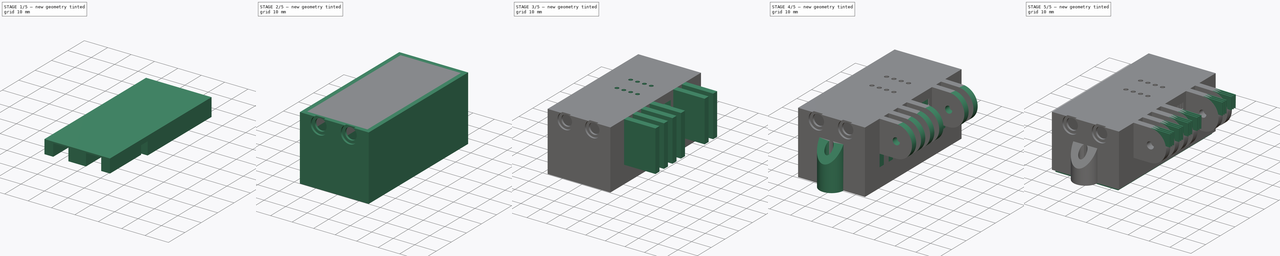
[diagram: build sequence overview — one tinted view per stage of 5, left to right]
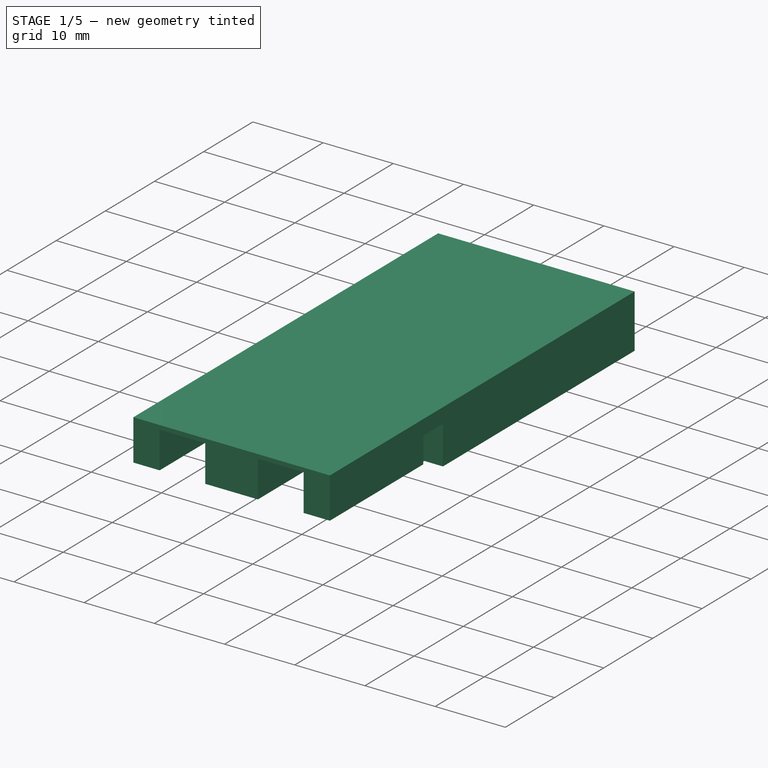
[diagram: stage 1 of 5 — iso view after this stage's code; geometry added in this stage tinted green]
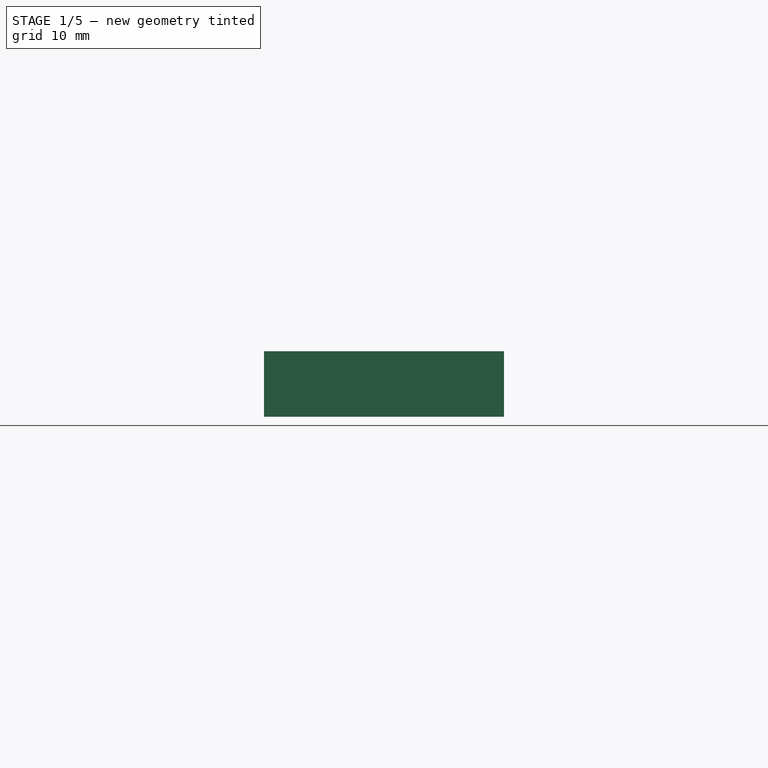
[diagram: stage 1 of 5 — front view after this stage's code; geometry added in this stage tinted green]
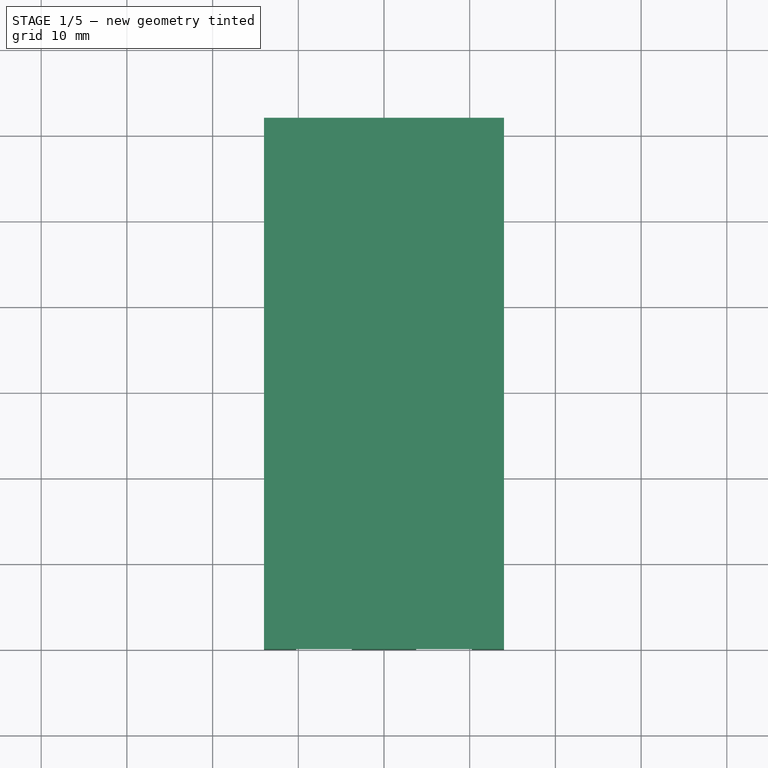
[diagram: stage 1 of 5 — top view after this stage's code; geometry added in this stage tinted green]
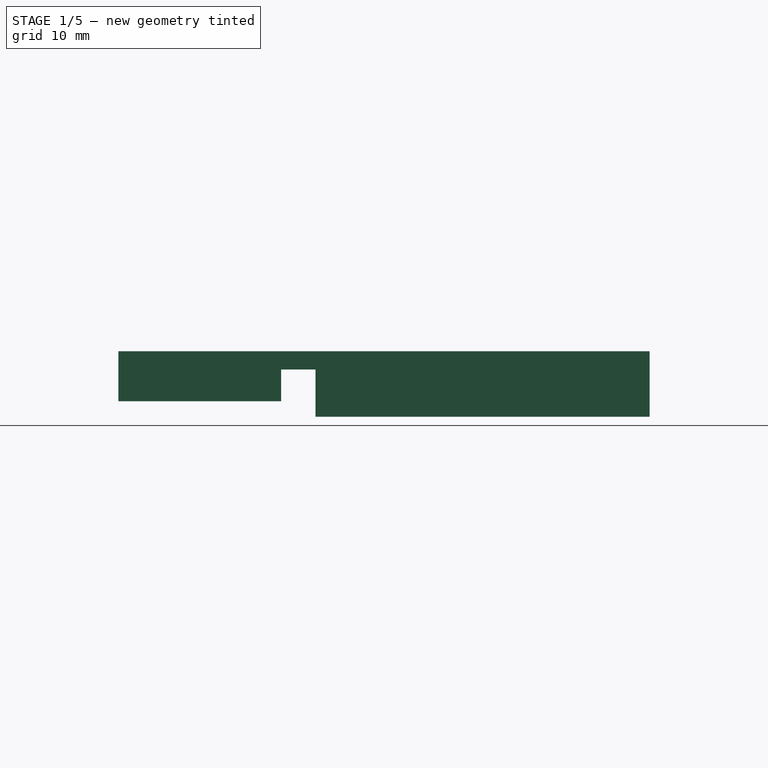
[diagram: stage 1 of 5 — right view after this stage's code; geometry added in this stage tinted green]
FCSTD DOCUMENT  (FreeCAD 0.20R29603 (Git))
Label: zasebna_kutija_v2
License: All rights reserved
LicenseURL: http://en.wikipedia.org/wiki/All_rights_reserved
objects: Sketcher::SketchObject×20, PartDesign::Pocket×14, PartDesign::Pad×6, PartDesign::Chamfer×1, PartDesign::Body×1
note: 63 computed .brp shape members not serialized (recipe doc carries the construction recipe); baked Part::Feature solids carry a one-line shape summary decoded from their .brp

FEATURE [Sketcher::SketchObject] Sketch
  FullyConstrained = true
  MapMode = 5
  Support = -> [XY_Plane]
  sketch-geometry (4):
    g0: LineSegment StartX=-14 StartY=62 StartZ=0 EndX=14 EndY=62 EndZ=0
    g1: LineSegment StartX=14 StartY=62 StartZ=0 EndX=14 EndY=0 EndZ=0
    g2: LineSegment StartX=14 StartY=0 StartZ=0 EndX=-14 EndY=0 EndZ=0
    g3: LineSegment StartX=-14 StartY=0 StartZ=0 EndX=-14 EndY=62 EndZ=0
  constraints (11):
    c: Coincident(g0,g1)
    c: Coincident(g1,g2)
    c: Coincident(g2,g3)
    c: Coincident(g3,g0)
    c: Horizontal(g0)
    c: Vertical(g1)
    c: Vertical(g3)
    c: PointOnObject(g1,g-1)
    c: DistanceX(g2,g2) = 28
    c: DistanceY(g1,g1) = 62
    c: Symmetric(g2,g1,g-2)
FEATURE [PartDesign::Pad] Pad
  Direction = (0,0,1)
  Length = 7.63
  Length2 = 10
  Profile = -> Sketch
  ReferenceAxis = -> Sketch [N_Axis]
  Type = 0
FEATURE [Sketcher::SketchObject] Sketch001
  AttachmentOffset = pos=(0,0,-1.8) rot=(0,0,1;0rad)
  FullyConstrained = true
  MapMode = 5
  Placement = pos=(0,0,1.8) rot=(1,0,0;3.14159rad)
  Support = -> [Pad]
  sketch-geometry (8):
    g0: LineSegment StartX=-10.25 StartY=2 StartZ=0 EndX=-3.75 EndY=2 EndZ=0
    g1: LineSegment StartX=-3.75 StartY=2 StartZ=0 EndX=-3.75 EndY=-13.6 EndZ=0
    g2: LineSegment StartX=-3.75 StartY=-13.6 StartZ=0 EndX=-10.25 EndY=-13.6 EndZ=0
    g3: LineSegment StartX=-10.25 StartY=-13.6 StartZ=0 EndX=-10.25 EndY=2 EndZ=0
    g4: LineSegment StartX=3.75 StartY=2 StartZ=0 EndX=10.25 EndY=2 EndZ=0
    g5: LineSegment StartX=10.25 StartY=2 StartZ=0 EndX=10.25 EndY=-13.6 EndZ=0
    g6: LineSegment StartX=10.25 StartY=-13.6 StartZ=0 EndX=3.75 EndY=-13.6 EndZ=0
    g7: LineSegment StartX=3.75 StartY=-13.6 StartZ=0 EndX=3.75 EndY=2 EndZ=0
  constraints (23):
    c: Coincident(g0,g1)
    c: Coincident(g1,g2)
    c: Coincident(g2,g3)
    c: Coincident(g3,g0)
    c: Horizontal(g0)
    c: Horizontal(g2)
    c: Vertical(g1)
    c: Vertical(g3)
    c: Coincident(g4,g5)
    c: Coincident(g5,g6)
    c: Coincident(g6,g7)
    c: Coincident(g7,g4)
    c: Horizontal(g4)
    c: Horizontal(g6)
    c: Vertical(g5)
    c: Vertical(g7)
    c: Equal(g5,g1)
    c: DistanceX(g2,g2) = 6.5
    c: Equal(g2,g6)
    c: DistanceY(g3,g3) = 15.6
    c: DistanceY(g-1,g0) = 2
    c: Symmetric(g0,g4,g-2)
    c: DistanceX(g0,g4) = 7.5
FEATURE [Sketcher::SketchObject] Sketch004
  FullyConstrained = true
  MapMode = 5
  Placement = pos=(0,0,0) rot=(1,0,0;3.14159rad)
  sketch-geometry (4):
    g0: LineSegment StartX=-14 StartY=0 StartZ=0 EndX=14 EndY=0 EndZ=0
    g1: LineSegment StartX=14 StartY=0 StartZ=0 EndX=14 EndY=-23 EndZ=0
    g2: LineSegment StartX=14 StartY=-23 StartZ=0 EndX=-14 EndY=-23 EndZ=0
    g3: LineSegment StartX=-14 StartY=-23 StartZ=0 EndX=-14 EndY=0 EndZ=0
  constraints (11):
    c: Coincident(g0,g1)
    c: Coincident(g1,g2)
    c: Coincident(g2,g3)
    c: Coincident(g3,g0)
    c: Horizontal(g2)
    c: Vertical(g1)
    c: Vertical(g3)
    c: PointOnObject(g0,g-1)
    c: Symmetric(g0,g0,g-2)
    c: DistanceY(g1,g1) = 23
    c: DistanceX(g2,g2) = 28
FEATURE [PartDesign::Pocket] Pocket002
  BaseFeature = -> Pad
  Direction = (0,0,1)
  Length = 1.8
  Length2 = 5
  Profile = -> Sketch004
  ReferenceAxis = -> Sketch004 [N_Axis]
  Type = 0
FEATURE [PartDesign::Pocket] Pocket
  BaseFeature = -> Pocket002
  Direction = (0,0,1)
  Length = 5.23
  Length2 = 5
  Profile = -> Sketch001
  ReferenceAxis = -> Sketch001 [N_Axis]
  Type = 0
FEATURE [Sketcher::SketchObject] Sketch005
  FullyConstrained = true
  MapMode = 5
  Placement = pos=(0,0,1.8) rot=(1,0,0;3.14159rad)
  Support = -> [Pocket]
  sketch-geometry (4):
    g0: LineSegment StartX=-14 StartY=-19 StartZ=0 EndX=14 EndY=-19 EndZ=0
    g1: LineSegment StartX=14 StartY=-19 StartZ=0 EndX=14 EndY=-23 EndZ=0
    g2: LineSegment StartX=14 StartY=-23 StartZ=0 EndX=-14 EndY=-23 EndZ=0
    g3: LineSegment StartX=-14 StartY=-23 StartZ=0 EndX=-14 EndY=-19 EndZ=0
  constraints (11):
    c: Coincident(g0,g1)
    c: Coincident(g1,g2)
    c: Coincident(g2,g3)
    c: Coincident(g3,g0)
    c: Horizontal(g2)
    c: Vertical(g1)
    c: Vertical(g3)
    c: DistanceY(g0,g-1) = 19
    c: DistanceY(g1,g1) = 4
    c: Symmetric(g0,g0,g-2)
    c: DistanceX(g0,g0) = 28
FEATURE [PartDesign::Pocket] Pocket003
  BaseFeature = -> Pocket
  Direction = (0,0,1)
  Length = 3.7
  Length2 = 5
  Profile = -> Sketch005
  ReferenceAxis = -> Sketch005 [N_Axis]
  Type = 0
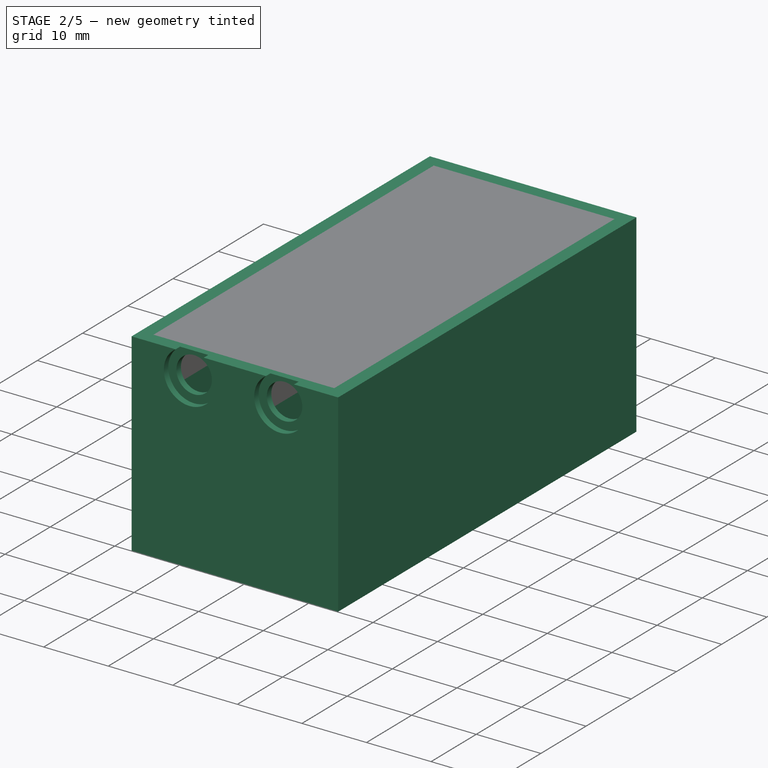
[diagram: stage 2 of 5 — iso view after this stage's code; geometry added in this stage tinted green]
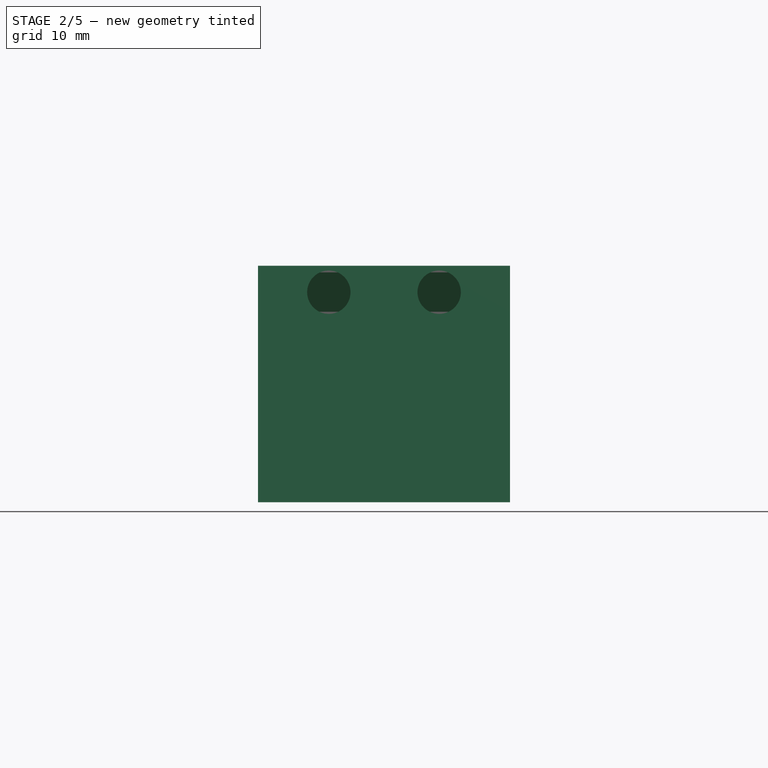
[diagram: stage 2 of 5 — front view after this stage's code; geometry added in this stage tinted green]
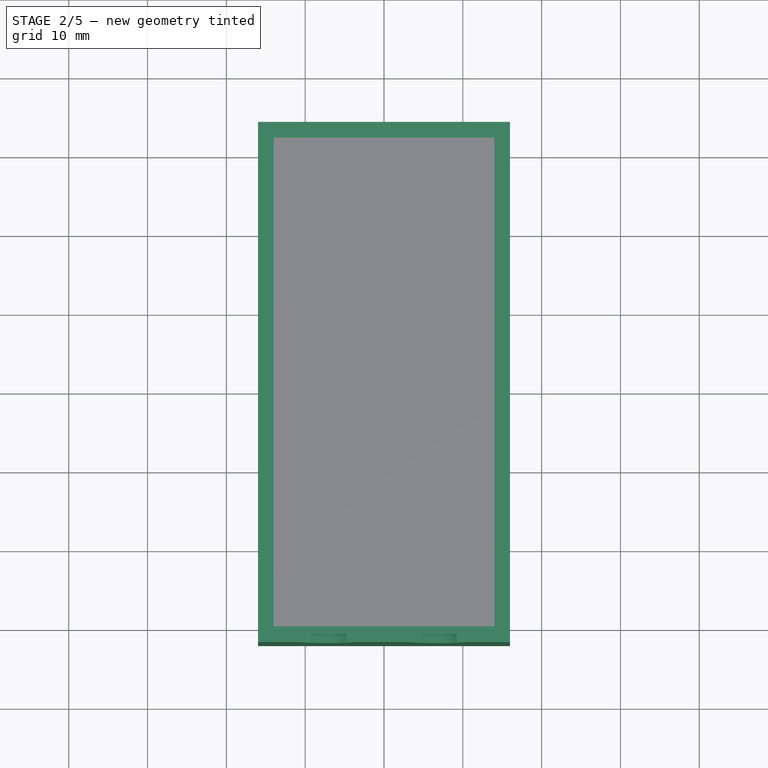
[diagram: stage 2 of 5 — top view after this stage's code; geometry added in this stage tinted green]
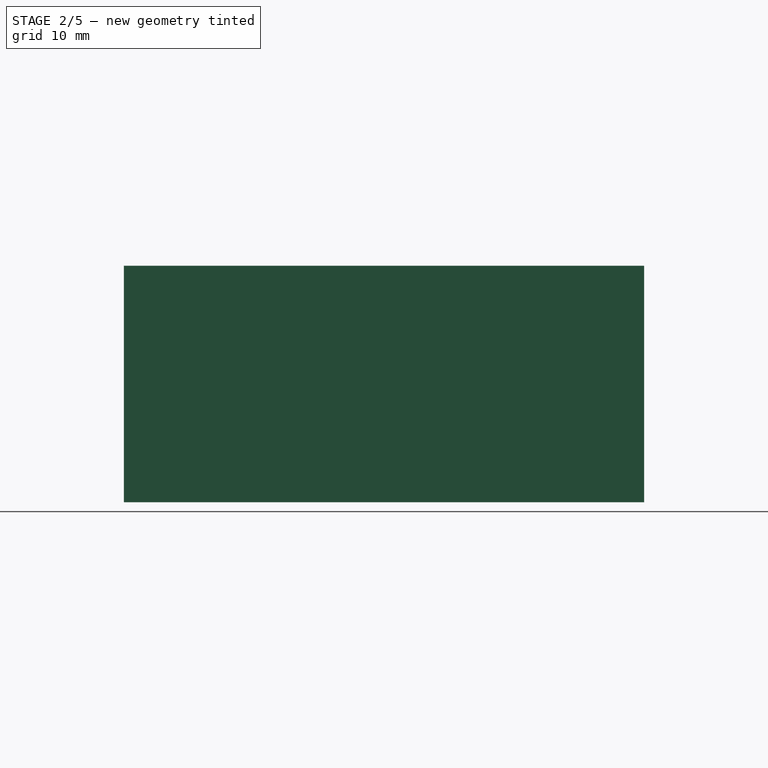
[diagram: stage 2 of 5 — right view after this stage's code; geometry added in this stage tinted green]
FEATURE [PartDesign::Chamfer] Chamfer
  Angle = 45
  Base = -> Pocket003 [Edge35,Edge38]
  BaseFeature = -> Pocket003
  ChamferType = 1
  FlipDirection = false
  Size = 3
  Size2 = 5
  SupportTransform = false
  UseAllEdges = false
FEATURE [Sketcher::SketchObject] Sketch006
  FullyConstrained = true
  MapMode = 5
  Placement = pos=(0,0,7.63) rot=(0,0,1;0rad)
  Support = -> [Chamfer]
  sketch-geometry (8):
    g0: LineSegment StartX=-13.995 StartY=62 StartZ=0 EndX=13.995 EndY=62 EndZ=0
    g1: LineSegment StartX=13.995 StartY=62 StartZ=0 EndX=13.995 EndY=0 EndZ=0
    g2: LineSegment StartX=13.995 StartY=0 StartZ=0 EndX=-13.995 EndY=0 EndZ=0
    g3: LineSegment StartX=-13.995 StartY=0 StartZ=0 EndX=-13.995 EndY=62 EndZ=0
    g4: LineSegment StartX=-15.995 StartY=64 StartZ=0 EndX=15.995 EndY=64 EndZ=0
    g5: LineSegment StartX=15.995 StartY=64 StartZ=0 EndX=15.995 EndY=-2 EndZ=0
    g6: LineSegment StartX=15.995 StartY=-2 StartZ=0 EndX=-15.995 EndY=-2 EndZ=0
    g7: LineSegment StartX=-15.995 StartY=-2 StartZ=0 EndX=-15.995 EndY=64 EndZ=0
  constraints (24):
    c: Coincident(g0,g1)
    c: Coincident(g1,g2)
    c: Coincident(g2,g3)
    c: Coincident(g3,g0)
    c: Horizontal(g0)
    c: Horizontal(g2)
    c: Vertical(g1)
    c: Vertical(g3)
    c: Coincident(g4,g5)
    c: Coincident(g5,g6)
    c: Coincident(g6,g7)
    c: Coincident(g7,g4)
    c: Horizontal(g4)
    c: Horizontal(g6)
    c: Vertical(g5)
    c: Vertical(g7)
    c: DistanceY(g1,g1) = 62
    c: DistanceX(g2,g2) = 27.99
    c: PointOnObject(g2,g-1)
    c: DistanceX(g2,g-1) = 13.995
    c: DistanceX(g1,g5) = 2
    c: DistanceY(g5,g1) = 2
    c: DistanceX(g4,g0) = 2
    c: DistanceY(g0,g4) = 2
FEATURE [PartDesign::Pad] Pad001
  BaseFeature = -> Chamfer
  Direction = (0,0,1)
  Length = 30
  Length2 = 10
  Profile = -> Sketch006
  ReferenceAxis = -> Sketch006 [N_Axis]
  Reversed = true
  Type = 0
FEATURE [Sketcher::SketchObject] Sketch007
  FullyConstrained = true
  MapMode = 5
  Placement = pos=(0,-2,0) rot=(1,0,0;1.5708rad)
  Support = -> [Pad001]
  sketch-geometry (2):
    g0: Circle CenterX=-7 CenterY=4.28 CenterZ=0 NormalX=0 NormalY=0 NormalZ=1 AngleXU=0 Radius=2.75
    g1: Circle CenterX=7 CenterY=4.28 CenterZ=0 NormalX=0 NormalY=0 NormalZ=1 AngleXU=0 Radius=2.75
  constraints (5):
    c: Symmetric(g0,g1,g-2)
    c: DistanceX(g0,g1) = 14
    c: DistanceY(g-1,g0) = 4.28
    c: Equal(g0,g1)
    c: Diameter(g0) = 5.5
FEATURE [PartDesign::Pocket] Pocket004
  BaseFeature = -> Pad001
  Direction = (0,1,-2e-16)
  Length = 2
  Length2 = 5
  Profile = -> Sketch007
  ReferenceAxis = -> Sketch007 [N_Axis]
  Type = 0
FEATURE [Sketcher::SketchObject] Sketch008
  FullyConstrained = true
  MapMode = 5
  Placement = pos=(0,-2,0) rot=(1,0,0;1.5708rad)
  Support = -> [Pocket004]
  sketch-geometry (2):
    g0: Circle CenterX=-7 CenterY=4.28 CenterZ=0 NormalX=0 NormalY=0 NormalZ=1 AngleXU=0 Radius=4
    g1: Circle CenterX=7 CenterY=4.28 CenterZ=0 NormalX=0 NormalY=0 NormalZ=1 AngleXU=0 Radius=4
  constraints (5):
    c: Symmetric(g1,g0,g-2)
    c: DistanceY(g-1,g1) = 4.28
    c: DistanceX(g0,g1) = 14
    c: Equal(g0,g1)
    c: Diameter(g1) = 8
FEATURE [PartDesign::Pocket] Pocket005
  BaseFeature = -> Pocket004
  Direction = (0,1,-2e-16)
  Length = 1
  Length2 = 5
  Profile = -> Sketch008
  ReferenceAxis = -> Sketch008 [N_Axis]
  Type = 0
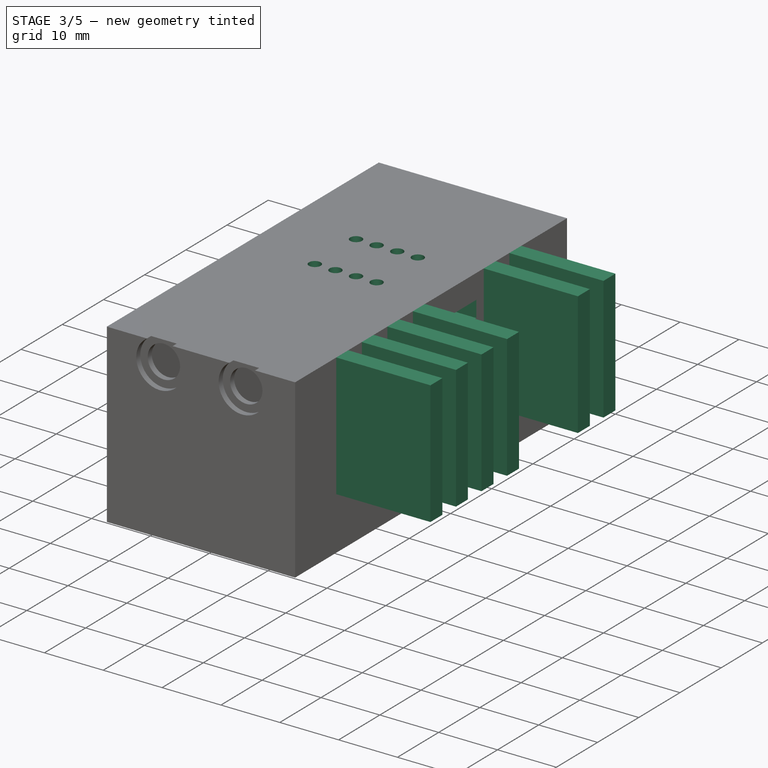
[diagram: stage 3 of 5 — iso view after this stage's code; geometry added in this stage tinted green]
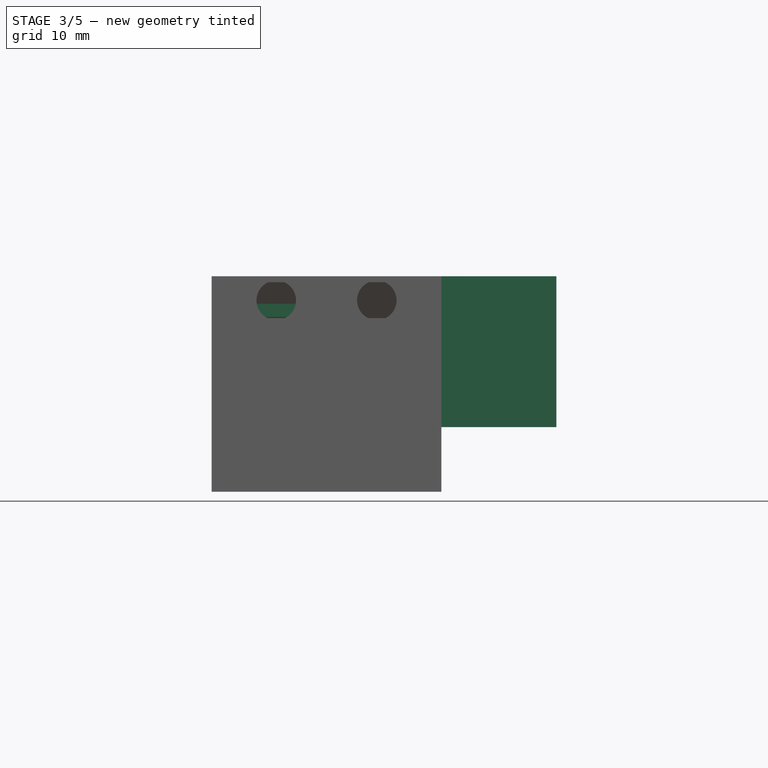
[diagram: stage 3 of 5 — front view after this stage's code; geometry added in this stage tinted green]
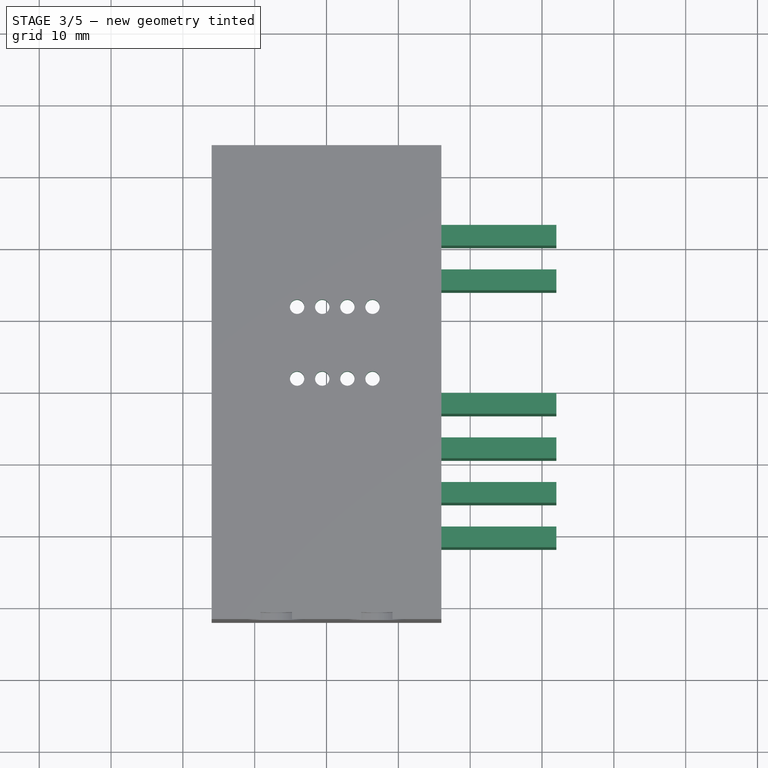
[diagram: stage 3 of 5 — top view after this stage's code; geometry added in this stage tinted green]
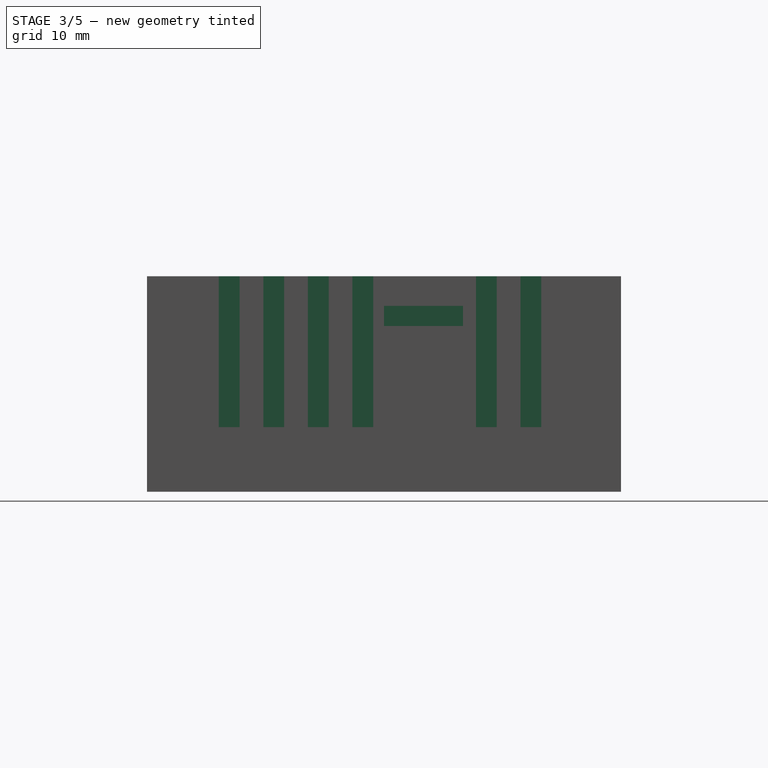
[diagram: stage 3 of 5 — right view after this stage's code; geometry added in this stage tinted green]
FEATURE [Sketcher::SketchObject] Sketch011
  FullyConstrained = true
  MapMode = 5
  Placement = pos=(0,0,1.8) rot=(1,0,0;3.14159rad)
  Support = -> [Pocket005]
  sketch-geometry (4):
    g0: LineSegment StartX=-13 StartY=-3 StartZ=0 EndX=4 EndY=-3 EndZ=0
    g1: LineSegment StartX=4 StartY=-3 StartZ=0 EndX=4 EndY=-16.5 EndZ=0
    g2: LineSegment StartX=4 StartY=-16.5 StartZ=0 EndX=-13 EndY=-16.5 EndZ=0
    g3: LineSegment StartX=-13 StartY=-16.5 StartZ=0 EndX=-13 EndY=-3 EndZ=0
  constraints (12):
    c: Coincident(g0,g1)
    c: Coincident(g1,g2)
    c: Coincident(g2,g3)
    c: Coincident(g3,g0)
    c: Horizontal(g0)
    c: Horizontal(g2)
    c: Vertical(g1)
    c: Vertical(g3)
    c: DistanceY(g0,g-1) = 3
    c: DistanceY(g1,g-1) = 16.5
    c: DistanceX(g2,g2) = 17
    c: DistanceX(g0,g-1) = 13
FEATURE [PartDesign::Pocket] Pocket006
  BaseFeature = -> Pocket005
  Direction = (0,0,1)
  Length = 2
  Length2 = 5
  Profile = -> Sketch011
  ReferenceAxis = -> Sketch011 [N_Axis]
  Type = 0
FEATURE [Sketcher::SketchObject] Sketch013
  FullyConstrained = true
  MapMode = 5
  Placement = pos=(15.995,0,0) rot=(0.57735,0.57735,0.57735;2.0944rad)
  sketch-geometry (4):
    g0: LineSegment StartX=31 StartY=0.7 StartZ=0 EndX=42 EndY=0.7 EndZ=0
    g1: LineSegment StartX=42 StartY=0.7 StartZ=0 EndX=42 EndY=3.5 EndZ=0
    g2: LineSegment StartX=42 StartY=3.5 StartZ=0 EndX=31 EndY=3.5 EndZ=0
    g3: LineSegment StartX=31 StartY=3.5 StartZ=0 EndX=31 EndY=0.7 EndZ=0
  constraints (12):
    c: Coincident(g0,g1)
    c: Coincident(g1,g2)
    c: Coincident(g2,g3)
    c: Coincident(g3,g0)
    c: Horizontal(g0)
    c: Horizontal(g2)
    c: Vertical(g1)
    c: Vertical(g3)
    c: DistanceY(g3,g3) = 2.8
    c: DistanceY(g-1,g0) = 0.7
    c: DistanceX(g0,g0) = 11
    c: DistanceX(g-1,g0) = 31
FEATURE [PartDesign::Pocket] Pocket007
  BaseFeature = -> Pocket006
  Direction = (-1,0,0)
  Length = 5
  Length2 = 5
  Profile = -> Sketch013
  ReferenceAxis = -> Sketch013 [N_Axis]
  Type = 0
FEATURE [Sketcher::SketchObject] Sketch014
  FullyConstrained = true
  MapMode = 5
  Placement = pos=(0,0,0) rot=(1,0,0;3.14159rad)
  Support = -> [Pocket007]
  sketch-geometry (4):
    g0: LineSegment StartX=-14 StartY=-27.5 StartZ=0 EndX=12 EndY=-27.5 EndZ=0
    g1: LineSegment StartX=12 StartY=-27.5 StartZ=0 EndX=12 EndY=-45.5 EndZ=0
    g2: LineSegment StartX=12 StartY=-45.5 StartZ=0 EndX=-14 EndY=-45.5 EndZ=0
    g3: LineSegment StartX=-14 StartY=-45.5 StartZ=0 EndX=-14 EndY=-27.5 EndZ=0
  constraints (12):
    c: Coincident(g0,g1)
    c: Coincident(g1,g2)
    c: Coincident(g2,g3)
    c: Coincident(g3,g0)
    c: Horizontal(g0)
    c: Horizontal(g2)
    c: Vertical(g1)
    c: Vertical(g3)
    c: DistanceY(g3,g3) = 18
    c: DistanceX(g0,g0) = 26
    c: DistanceY(g0,g-1) = 27.5
    c: DistanceX(g0,g-1) = 14
FEATURE [PartDesign::Pocket] Pocket008
  BaseFeature = -> Pocket007
  Direction = (0,0,1)
  Length = 3.5
  Length2 = 5
  Profile = -> Sketch014
  ReferenceAxis = -> Sketch014 [N_Axis]
  Type = 0
FEATURE [Sketcher::SketchObject] Sketch015
  FullyConstrained = true
  MapMode = 5
  Placement = pos=(0,0,3.5) rot=(1,0,0;3.14159rad)
  Support = -> [Pocket008]
  sketch-geometry (12):
    g0: Circle CenterX=-4.1 CenterY=-31.5 CenterZ=0 NormalX=0 NormalY=0 NormalZ=1 AngleXU=0 Radius=1
    g1: Circle CenterX=-0.6 CenterY=-31.5 CenterZ=0 NormalX=0 NormalY=0 NormalZ=1 AngleXU=0 Radius=1
    g2: Circle CenterX=2.9 CenterY=-31.5 CenterZ=0 NormalX=0 NormalY=0 NormalZ=1 AngleXU=0 Radius=1
    g3: Circle CenterX=6.4 CenterY=-31.5 CenterZ=0 NormalX=0 NormalY=0 NormalZ=1 AngleXU=0 Radius=1
    g4: Circle CenterX=-4.1 CenterY=-41.5 CenterZ=0 NormalX=0 NormalY=0 NormalZ=1 AngleXU=0 Radius=1
    g5: Circle CenterX=-0.6 CenterY=-41.5 CenterZ=0 NormalX=0 NormalY=0 NormalZ=1 AngleXU=0 Radius=1
    g6: Circle CenterX=2.9 CenterY=-41.5 CenterZ=0 NormalX=0 NormalY=0 NormalZ=1 AngleXU=0 Radius=1
    g7: Circle CenterX=6.4 CenterY=-41.5 CenterZ=0 NormalX=0 NormalY=0 NormalZ=1 AngleXU=0 Radius=1
    g8: LineSegment StartX=-4.1 StartY=-31.5 StartZ=0 EndX=6.4 EndY=-31.5 EndZ=0
    g9: LineSegment StartX=6.4 StartY=-31.5 StartZ=0 EndX=6.4 EndY=-41.5 EndZ=0
    g10: LineSegment StartX=6.4 StartY=-41.5 StartZ=0 EndX=-4.1 EndY=-41.5 EndZ=0
    g11: LineSegment StartX=-4.1 StartY=-41.5 StartZ=0 EndX=-4.1 EndY=-31.5 EndZ=0
  constraints (32):
    c: Equal(g4,g5)
    c: Equal(g5,g6)
    c: Equal(g6,g7)
    c: Equal(g7,g3)
    c: Equal(g3,g2)
    c: Equal(g2,g1)
    c: Equal(g1,g0)
    c: Diameter(g3) = 2
    c: Coincident(g8,g9)
    c: Coincident(g9,g10)
    c: Coincident(g10,g11)
    c: Coincident(g11,g8)
    c: Horizontal(g8)
    c: Horizontal(g10)
    c: Vertical(g9)
    c: Vertical(g11)
    c: PointOnObject(g1,g8)
    c: PointOnObject(g2,g8)
    c: PointOnObject(g5,g10)
    c: PointOnObject(g6,g10)
    c: Coincident(g7,g9)
    c: Coincident(g4,g10)
    c: Coincident(g0,g8)
    c: Coincident(g3,g8)
    c: DistanceX(g6,g7) = 3.5
    c: DistanceX(g5,g6) = 3.5
    c: DistanceX(g4,g5) = 3.5
    c: DistanceX(g0,g1) = 3.5
    c: DistanceX(g1,g2) = 3.5
    c: DistanceY(g9,g9) = 10
    c: DistanceY(g3,g-1) = 31.5
    c: DistanceX(g-1,g3) = 6.4
FEATURE [PartDesign::Pocket] Pocket009
  BaseFeature = -> Pocket008
  Direction = (0,0,1)
  Length = 5
  Length2 = 5
  Profile = -> Sketch015
  ReferenceAxis = -> Sketch015 [N_Axis]
  Type = 1
FEATURE [Sketcher::SketchObject] Sketch016
  FullyConstrained = true
  MapMode = 5
  Placement = pos=(15.995,0,0) rot=(0.57735,0.57735,0.57735;2.0944rad)
  Support = -> [Pocket009]
  sketch-geometry (28):
    g0: LineSegment StartX=8 StartY=7.63 StartZ=0 EndX=52.9 EndY=7.63 EndZ=0
    g1: LineSegment StartX=52.9 StartY=7.63 StartZ=0 EndX=52.9 EndY=-13.37 EndZ=0
    g2: LineSegment StartX=52.9 StartY=-13.37 StartZ=0 EndX=8 EndY=-13.37 EndZ=0
    g3: LineSegment StartX=8 StartY=-13.37 StartZ=0 EndX=8 EndY=7.63 EndZ=0
    g4: LineSegment StartX=20.4 StartY=7.63 StartZ=0 EndX=23.3 EndY=7.63 EndZ=0
    g5: LineSegment StartX=23.3 StartY=7.63 StartZ=0 EndX=23.3 EndY=-13.37 EndZ=0
    g6: LineSegment StartX=23.3 StartY=-13.37 StartZ=0 EndX=20.4 EndY=-13.37 EndZ=0
    g7: LineSegment StartX=20.4 StartY=-13.37 StartZ=0 EndX=20.4 EndY=7.63 EndZ=0
    g8: LineSegment StartX=14.2 StartY=7.63 StartZ=0 EndX=17.1 EndY=7.63 EndZ=0
    g9: LineSegment StartX=17.1 StartY=7.63 StartZ=0 EndX=17.1 EndY=-13.37 EndZ=0
    g10: LineSegment StartX=17.1 StartY=-13.37 StartZ=0 EndX=14.2 EndY=-13.37 EndZ=0
    g11: LineSegment StartX=14.2 StartY=-13.37 StartZ=0 EndX=14.2 EndY=7.63 EndZ=0
    g12: LineSegment StartX=8 StartY=7.63 StartZ=0 EndX=10.9 EndY=7.63 EndZ=0
    g13: LineSegment StartX=10.9 StartY=7.63 StartZ=0 EndX=10.9 EndY=-13.37 EndZ=0
    g14: LineSegment StartX=10.9 StartY=-13.37 StartZ=0 EndX=8 EndY=-13.37 EndZ=0
    g15: LineSegment StartX=8 StartY=-13.37 StartZ=0 EndX=8 EndY=7.63 EndZ=0
    g16: LineSegment StartX=26.6 StartY=7.63 StartZ=0 EndX=29.5 EndY=7.63 EndZ=0
    g17: LineSegment StartX=29.5 StartY=7.63 StartZ=0 EndX=29.5 EndY=-13.37 EndZ=0
    g18: LineSegment StartX=29.5 StartY=-13.37 StartZ=0 EndX=26.6 EndY=-13.37 EndZ=0
    g19: LineSegment StartX=26.6 StartY=-13.37 StartZ=0 EndX=26.6 EndY=7.63 EndZ=0
    g20: LineSegment StartX=52.9 StartY=7.63 StartZ=0 EndX=50 EndY=7.63 EndZ=0
    g21: LineSegment StartX=50 StartY=7.63 StartZ=0 EndX=50 EndY=-13.37 EndZ=0
    g22: LineSegment StartX=50 StartY=-13.37 StartZ=0 EndX=52.9 EndY=-13.37 EndZ=0
    g23: LineSegment StartX=52.9 StartY=-13.37 StartZ=0 EndX=52.9 EndY=7.63 EndZ=0
    g24: LineSegment StartX=43.8 StartY=7.63 StartZ=0 EndX=46.7 EndY=7.63 EndZ=0
    g25: LineSegment StartX=46.7 StartY=7.63 StartZ=0 EndX=46.7 EndY=-13.37 EndZ=0
    g26: LineSegment StartX=46.7 StartY=-13.37 StartZ=0 EndX=43.8 EndY=-13.37 EndZ=0
    g27: LineSegment StartX=43.8 StartY=-13.37 StartZ=0 EndX=43.8 EndY=7.63 EndZ=0
  constraints (83):
    c: Coincident(g0,g1)
    c: Coincident(g1,g2)
    c: Coincident(g2,g3)
    c: Coincident(g3,g0)
    c: Horizontal(g0)
    c: Horizontal(g2)
    c: Vertical(g1)
    c: Vertical(g3)
    c: DistanceX(g0,g0) = 44.9
    c: DistanceX(g-1,g0) = 8
    c: Coincident(g4,g5)
    c: Coincident(g5,g6)
    c: Coincident(g6,g7)
    c: Coincident(g7,g4)
    c: Horizontal(g4)
    c: Horizontal(g6)
    c: Vertical(g5)
    c: Vertical(g7)
    c: Coincident(g8,g9)
    c: Coincident(g9,g10)
    c: Coincident(g10,g11)
    c: Coincident(g11,g8)
    c: Horizontal(g8)
    c: Horizontal(g10)
    c: Vertical(g9)
    c: Vertical(g11)
    c: Coincident(g12,g13)
    c: Coincident(g13,g14)
    c: Coincident(g14,g15)
    c: Coincident(g15,g12)
    c: Horizontal(g12)
    c: Horizontal(g14)
    c: Vertical(g13)
    c: Vertical(g15)
    c: Equal(g14,g10)
    c: Equal(g10,g6)
    c: DistanceX(g14,g14) = 2.9
    c: DistanceX(g13,g10) = 3.3
    c: DistanceX(g9,g6) = 3.3
    c: PointOnObject(g9,g2)
    c: PointOnObject(g5,g2)
    c: PointOnObject(g12,g0)
    c: PointOnObject(g8,g0)
    c: PointOnObject(g4,g0)
    c: Coincident(g14,g2)
    c: Coincident(g16,g17)
    c: Coincident(g17,g18)
    c: Coincident(g18,g19)
    c: Coincident(g19,g16)
    c: Horizontal(g16)
    c: Horizontal(g18)
    c: Vertical(g17)
    c: Vertical(g19)
    c: PointOnObject(g16,g0)
    c: PointOnObject(g17,g2)
    c: Equal(g6,g18)
    c: DistanceX(g5,g18) = 3.3
    c: Coincident(g20,g21)
    c: Coincident(g21,g22)
    c: Coincident(g22,g23)
    c: Coincident(g23,g20)
    c: Horizontal(g20)
    c: Horizontal(g22)
    c: Vertical(g21)
    c: Vertical(g23)
    c: Coincident(g20,g0)
    c: PointOnObject(g21,g2)
    c: Coincident(g24,g25)
    c: Coincident(g25,g26)
    c: Coincident(g26,g27)
    c: Coincident(g27,g24)
    c: Horizontal(g24)
    c: Horizontal(g26)
    c: Vertical(g25)
    c: Vertical(g27)
    c: PointOnObject(g24,g0)
    c: PointOnObject(g25,g2)
    c: DistanceX(g25,g21) = 3.3
    c: Equal(g18,g26)
    c: Equal(g26,g22)
    c: DistanceY(g23,g23) = 21
    c: DistanceY(g-1,g12) = 7.63
    c: DistanceX(g17,g26) = 14.3
FEATURE [PartDesign::Pad] Pad002
  BaseFeature = -> Pocket009
  Direction = (1,0,0)
  Length = 16
  Length2 = 10
  Profile = -> Sketch016
  ReferenceAxis = -> Sketch016 [N_Axis]
  Type = 0
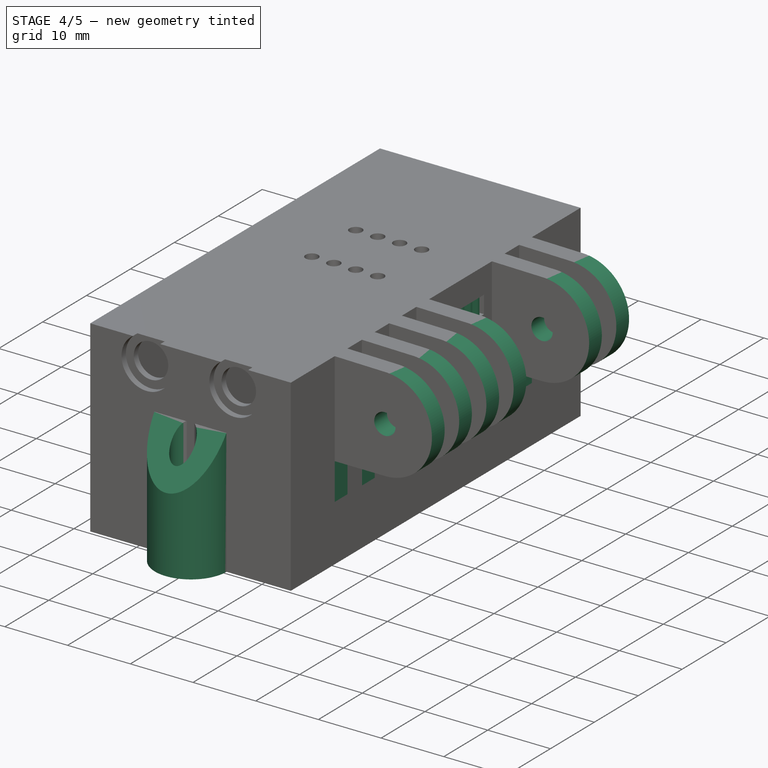
[diagram: stage 4 of 5 — iso view after this stage's code; geometry added in this stage tinted green]
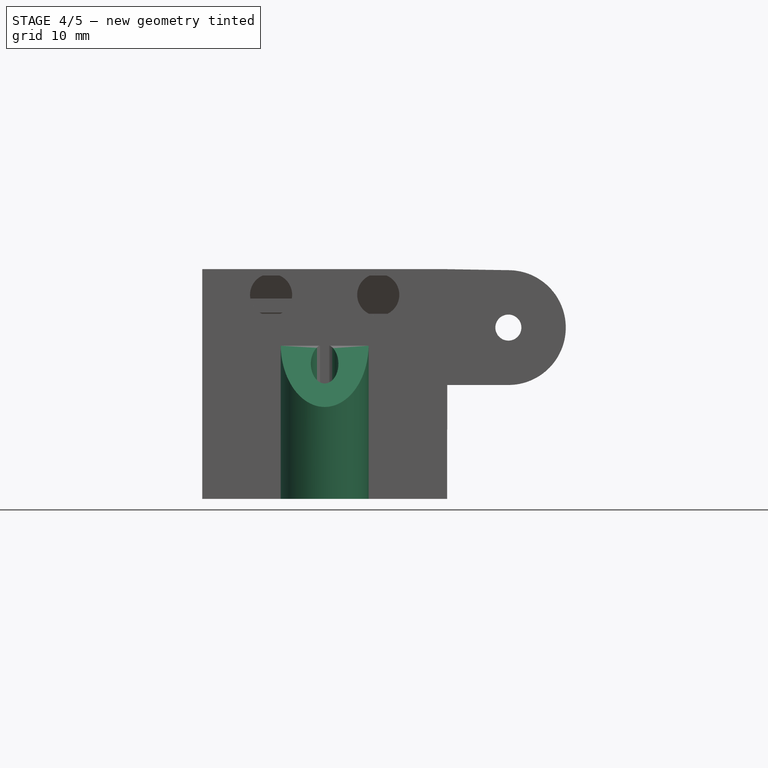
[diagram: stage 4 of 5 — front view after this stage's code; geometry added in this stage tinted green]
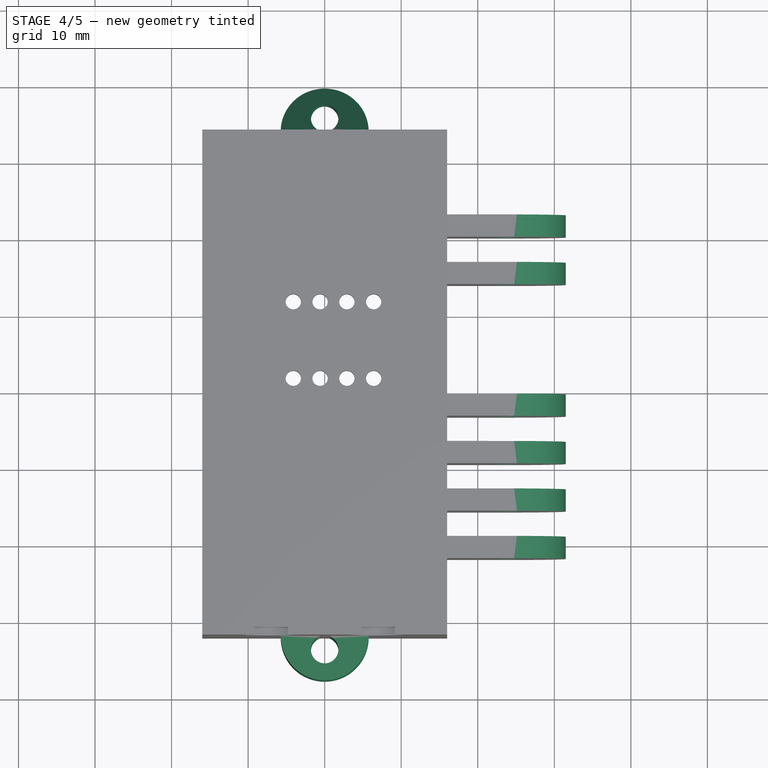
[diagram: stage 4 of 5 — top view after this stage's code; geometry added in this stage tinted green]
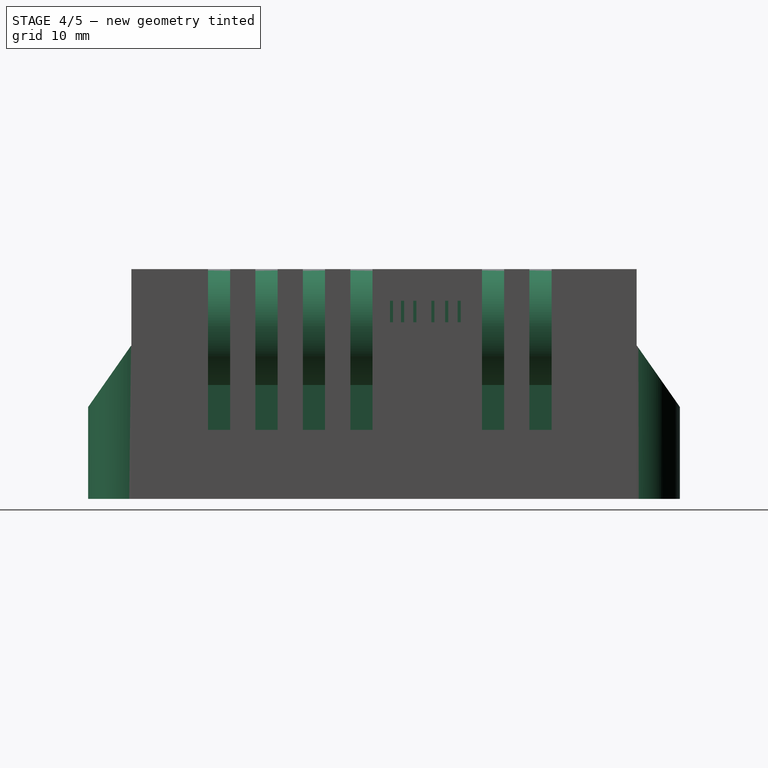
[diagram: stage 4 of 5 — right view after this stage's code; geometry added in this stage tinted green]
FEATURE [Sketcher::SketchObject] Sketch017
  FullyConstrained = false
  MapMode = 5
  Placement = pos=(0,8,0) rot=(1,0,0;1.5708rad)
  Support = -> [Pad002]
  sketch-geometry (10):
    g0: Circle CenterX=24 CenterY=0 CenterZ=0 NormalX=0 NormalY=0 NormalZ=1 AngleXU=0 Radius=1.7
    g1: ArcOfCircle CenterX=24 CenterY=0 CenterZ=0 NormalX=0 NormalY=0 NormalZ=1 AngleXU=0 Radius=7.5 StartAngle=4.71239 EndAngle=7.85386
    g2: LineSegment StartX=24.0009 StartY=7.5 StartZ=0 EndX=16 EndY=7.63 EndZ=0
    g3: LineSegment StartX=16 StartY=7.63 StartZ=0 EndX=16 EndY=9.94258 EndZ=0
    g4: LineSegment StartX=16 StartY=9.94258 StartZ=0 EndX=36.6849 EndY=9.94258 EndZ=0
    g5: LineSegment StartX=36.6849 StartY=9.94258 StartZ=0 EndX=36.6849 EndY=-7.5 EndZ=0
    g6: LineSegment StartX=24 StartY=-7.5 StartZ=0 EndX=16.008 EndY=-7.5 EndZ=0
    g7: LineSegment StartX=16.008 StartY=-15.543 StartZ=0 EndX=36.6849 EndY=-15.543 EndZ=0
    g8: LineSegment StartX=36.6849 StartY=-15.543 StartZ=0 EndX=36.6849 EndY=-7.5 EndZ=0
    g9: LineSegment StartX=16.008 StartY=-7.5 StartZ=0 EndX=16.008 EndY=-15.543 EndZ=0
  constraints (23):
    c: Diameter(g0) = 3.4
    c: PointOnObject(g0,g-1)
    c: DistanceX(g-1,g0) = 24
    c: Coincident(g1,g0)
    c: Diameter(g1) = 15
    c: Coincident(g2,g3)
    c: Vertical(g3)
    c: Coincident(g3,g4)
    c: Horizontal(g4)
    c: Coincident(g4,g5)
    c: Vertical(g5)
    c: Coincident(g1,g2)
    c: Coincident(g6,g1)
    c: Horizontal(g6)
    c: Horizontal(g7)
    c: Coincident(g8,g7)
    c: Coincident(g8,g5)
    c: Vertical(g8)
    c: Coincident(g9,g6)
    c: Vertical(g9)
    c: Coincident(g9,g7)
    c: DistanceY(g-1,g2) = 7.63
    c: DistanceX(g-1,g2) = 16
FEATURE [PartDesign::Pocket] Pocket010
  BaseFeature = -> Pad002
  Direction = (0,1,-2e-16)
  Length = 5
  Length2 = 5
  Profile = -> Sketch017
  ReferenceAxis = -> Sketch017 [N_Axis]
  Type = 1
FEATURE [Sketcher::SketchObject] Sketch018
  ExternalGeometry = -> [Pocket010]
  FullyConstrained = true
  MapMode = 5
  Placement = pos=(0,0,-22.37) rot=(1,0,0;3.14159rad)
  Support = -> [Pocket010]
  sketch-geometry (6):
    g0: ArcOfCircle CenterX=0 CenterY=1.9 CenterZ=0 NormalX=0 NormalY=0 NormalZ=1 AngleXU=0 Radius=5.75 StartAngle=0 EndAngle=3.14159
    g1: Circle CenterX=0 CenterY=3.7 CenterZ=0 NormalX=0 NormalY=0 NormalZ=1 AngleXU=0 Radius=1.8
    g2: LineSegment StartX=-5.75 StartY=1.9 StartZ=0 EndX=5.75 EndY=1.9 EndZ=0
    g3: ArcOfCircle CenterX=0 CenterY=-63.9 CenterZ=0 NormalX=0 NormalY=0 NormalZ=1 AngleXU=0 Radius=5.75 StartAngle=3.14159 EndAngle=6.28319
    g4: LineSegment StartX=-5.75 StartY=-63.9 StartZ=0 EndX=5.75 EndY=-63.9 EndZ=0
    g5: Circle CenterX=0 CenterY=-65.7 CenterZ=0 NormalX=0 NormalY=0 NormalZ=1 AngleXU=0 Radius=1.8
  constraints (22):
    c: PointOnObject(g0,g-2)
    c: PointOnObject(g1,g-2)
    c: Coincident(g2,g0)
    c: Horizontal(g2)
    c: PointOnObject(g0,g2)
    c: Diameter(g1) = 3.6
    c: Diameter(g0) = 11.5
    c: PointOnObject(g3,g-2)
    c: Diameter(g3) = 11.5
    c: Coincident(g4,g3)
    c: Coincident(g4,g3)
    c: Horizontal(g4)
    c: PointOnObject(g3,g4)
    c: PointOnObject(g5,g-2)
    c: Diameter(g5) = 3.6
    c: DistanceY(g5,g1) = 69.4
    c: PointOnObject(g3,g5)
    c: DistanceY(g0,g-3) = 0.1
    c: PointOnObject(g0,g1)
    c: Coincident(g0,g2)
    c: DistanceY(g-3,g3) = 0.1
    c: DistanceY(g-3,g-3) = 66
FEATURE [PartDesign::Pad] Pad003
  BaseFeature = -> Pocket010
  Direction = (0,0,-1)
  Length = 20
  Length2 = 10
  Profile = -> Sketch018
  ReferenceAxis = -> Sketch018 [N_Axis]
  Reversed = true
  Type = 0
FEATURE [Sketcher::SketchObject] Sketch019
  FullyConstrained = true
  MapMode = 5
  Placement = pos=(-15.995,0,0) rot=(0.57735,-0.57735,-0.57735;2.0944rad)
  Support = -> [Pad003]
  sketch-geometry (6):
    g0: LineSegment StartX=-71.9493 StartY=-13.6528 StartZ=0 EndX=-64 EndY=-2.3 EndZ=0
    g1: LineSegment StartX=-64 StartY=-2.3 StartZ=0 EndX=-71.9493 EndY=8.92721 EndZ=0
    g2: LineSegment StartX=-71.9493 StartY=8.92721 StartZ=0 EndX=-71.9493 EndY=-13.6528 EndZ=0
    g3: LineSegment StartX=2 StartY=-2.3 StartZ=0 EndX=10.9951 EndY=-15.1464 EndZ=0
    g4: LineSegment StartX=10.9951 StartY=-15.1464 StartZ=0 EndX=10.9951 EndY=9.16365 EndZ=0
    g5: LineSegment StartX=10.9951 StartY=9.16365 StartZ=0 EndX=2 EndY=-2.3 EndZ=0
  constraints (18):
    c: Coincident(g0,g1)
    c: Coincident(g1,g2)
    c: Coincident(g2,g0)
    c: Angle(g0,g-1) = 2.18166
    c: Vertical(g2)
    c: DistanceX(g0,g-1) = 64
    c: DistanceY(g0,g-1) = 2.3
    c: DistanceY(g2,g2) = 22.58
    c: Angle(g1,g0) = 1.91463
    c: Coincident(g3,g4)
    c: Vertical(g4)
    c: Coincident(g4,g5)
    c: Coincident(g5,g3)
    c: DistanceY(g3,g-1) = 2.3
    c: Angle(g3,g-1) = 0.959931
    c: DistanceY(g4,g4) = 24.31
    c: Angle(g3,g5) = 1.86541
    c: DistanceX(g-1,g3) = 2
FEATURE [PartDesign::Pocket] Pocket011
  BaseFeature = -> Pad003
  Direction = (1,0,0)
  Length = 5
  Length2 = 5
  Profile = -> Sketch019
  ReferenceAxis = -> Sketch019 [N_Axis]
  Type = 1
FEATURE [Sketcher::SketchObject] Sketch020
  FullyConstrained = false
  Placement = pos=(0,0,3.5) rot=(1,0,0;3.14159rad)
  Support = -> [Sketch018]
  sketch-geometry (25):
    g0: LineSegment StartX=12.0257 StartY=-31.7803 StartZ=0 EndX=15.9692 EndY=-31.7803 EndZ=0
    g1: LineSegment StartX=15.9692 StartY=-31.7803 StartZ=0 EndX=15.9692 EndY=-32.1803 EndZ=0
    g2: LineSegment StartX=15.9692 StartY=-32.1803 StartZ=0 EndX=12.0257 EndY=-32.1803 EndZ=0
    g3: LineSegment StartX=12.0257 StartY=-32.1803 StartZ=0 EndX=12.0257 EndY=-31.7803 EndZ=0
    g4: LineSegment StartX=12.0257 StartY=-37.1864 StartZ=0 EndX=15.9692 EndY=-37.1864 EndZ=0
    g5: LineSegment StartX=15.9692 StartY=-37.1864 StartZ=0 EndX=15.9692 EndY=-37.5864 EndZ=0
    g6: LineSegment StartX=15.9692 StartY=-37.5864 StartZ=0 EndX=12.0257 EndY=-37.5864 EndZ=0
    g7: LineSegment StartX=12.0257 StartY=-37.5864 StartZ=0 EndX=12.0257 EndY=-37.1864 EndZ=0
    g8: LineSegment StartX=12.0257 StartY=-38.9859 StartZ=0 EndX=15.9692 EndY=-38.9859 EndZ=0
    g9: LineSegment StartX=15.9692 StartY=-38.9859 StartZ=0 EndX=15.9692 EndY=-39.3859 EndZ=0
    g10: LineSegment StartX=15.9692 StartY=-39.3859 StartZ=0 EndX=12.0257 EndY=-39.3859 EndZ=0
    g11: LineSegment StartX=12.0257 StartY=-39.3859 StartZ=0 EndX=12.0257 EndY=-38.9859 EndZ=0
    g12: LineSegment StartX=12.0257 StartY=-40.6251 StartZ=0 EndX=15.9692 EndY=-40.6251 EndZ=0
    g13: LineSegment StartX=15.9692 StartY=-40.6251 StartZ=0 EndX=15.9692 EndY=-41.0251 EndZ=0
    g14: LineSegment StartX=15.9692 StartY=-41.0251 StartZ=0 EndX=12.0257 EndY=-41.0251 EndZ=0
    g15: LineSegment StartX=12.0257 StartY=-41.0251 StartZ=0 EndX=12.0257 EndY=-40.6251 EndZ=0
    g16: LineSegment StartX=12.0257 StartY=-31.7803 StartZ=0 EndX=12.0257 EndY=-41.0251 EndZ=0
    g17: LineSegment StartX=12.0257 StartY=-33.2283 StartZ=0 EndX=15.9692 EndY=-33.2283 EndZ=0
    g18: LineSegment StartX=15.9692 StartY=-33.2283 StartZ=0 EndX=15.9692 EndY=-33.6283 EndZ=0
    g19: LineSegment StartX=15.9692 StartY=-33.6283 StartZ=0 EndX=12.0257 EndY=-33.6283 EndZ=0
    g20: LineSegment StartX=12.0257 StartY=-33.6283 StartZ=0 EndX=12.0257 EndY=-33.2283 EndZ=0
    g21: LineSegment StartX=12.0257 StartY=-34.8232 StartZ=0 EndX=15.9692 EndY=-34.8232 EndZ=0
    g22: LineSegment StartX=15.9692 StartY=-34.8232 StartZ=0 EndX=15.9692 EndY=-35.2232 EndZ=0
    g23: LineSegment StartX=15.9692 StartY=-35.2232 StartZ=0 EndX=12.0257 EndY=-35.2232 EndZ=0
    g24: LineSegment StartX=12.0257 StartY=-35.2232 StartZ=0 EndX=12.0257 EndY=-34.8232 EndZ=0
  constraints (66):
    c: Coincident(g0,g1)
    c: Coincident(g1,g2)
    c: Coincident(g2,g3)
    c: Coincident(g3,g0)
    c: Horizontal(g0)
    c: Horizontal(g2)
    c: Vertical(g1)
    c: Vertical(g3)
    c: Coincident(g4,g5)
    c: Coincident(g5,g6)
    c: Coincident(g6,g7)
    c: Coincident(g7,g4)
    c: Horizontal(g4)
    c: Horizontal(g6)
    c: Vertical(g5)
    c: Vertical(g7)
    c: Coincident(g8,g9)
    c: Coincident(g9,g10)
    c: Coincident(g10,g11)
    c: Coincident(g11,g8)
    c: Horizontal(g8)
    c: Horizontal(g10)
    c: Vertical(g9)
    c: Vertical(g11)
    c: Coincident(g12,g13)
    c: Coincident(g13,g14)
    c: Coincident(g14,g15)
    c: Coincident(g15,g12)
    c: Horizontal(g12)
    c: Horizontal(g14)
    c: Vertical(g13)
    c: Vertical(g15)
    c: Equal(g1,g5)
    c: Equal(g5,g9)
    c: Equal(g9,g13)
    c: DistanceY(g1,g1) = 0.4
    c: Vertical(g16)
    c: Coincident(g0,g16)
    c: Coincident(g14,g16)
    c: PointOnObject(g10,g16)
    c: PointOnObject(g6,g16)
    c: Coincident(g17,g18)
    c: Coincident(g18,g19)
    c: Coincident(g19,g20)
    c: Coincident(g20,g17)
    c: Horizontal(g17)
    c: Horizontal(g19)
    c: Vertical(g18)
    c: Vertical(g20)
    c: PointOnObject(g17,g16)
    c: Coincident(g21,g22)
    c: Coincident(g22,g23)
    c: Coincident(g23,g24)
    c: Coincident(g24,g21)
    c: Horizontal(g21)
    c: Horizontal(g23)
    c: Vertical(g22)
    c: Vertical(g24)
    c: PointOnObject(g21,g16)
    c: Equal(g14,g10)
    c: Equal(g10,g6)
    c: Equal(g6,g23)
    c: Equal(g23,g19)
    c: Equal(g19,g2)
    c: Equal(g5,g22)
    c: Equal(g22,g18)
FEATURE [PartDesign::Pad] Pad004
  BaseFeature = -> Pocket011
  Direction = (0,0,-1)
  Length = 3
  Length2 = 10
  Profile = -> Sketch020
  ReferenceAxis = -> Sketch020 [N_Axis]
  Type = 0
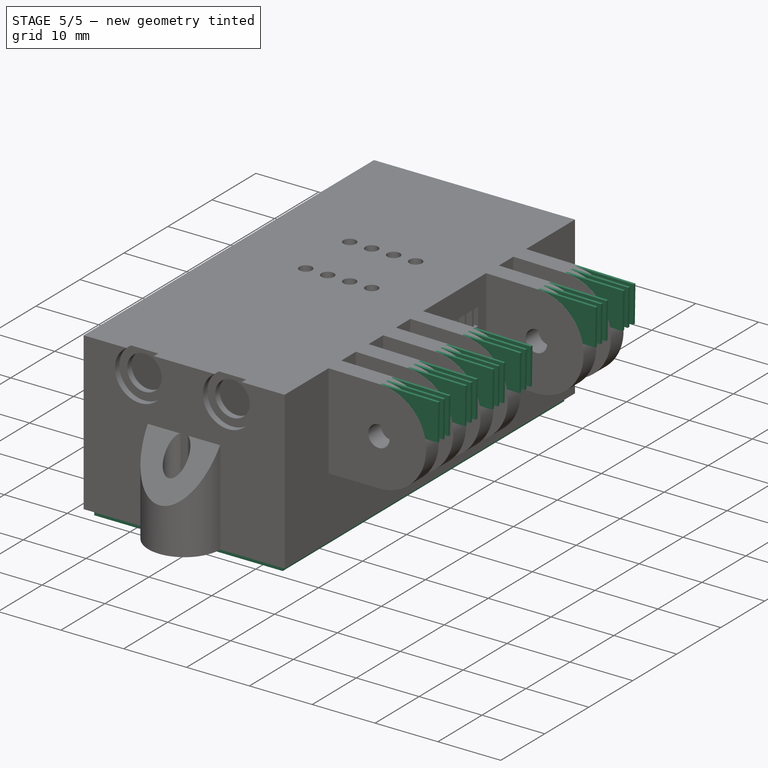
[diagram: stage 5 of 5 — iso view after this stage's code; geometry added in this stage tinted green]
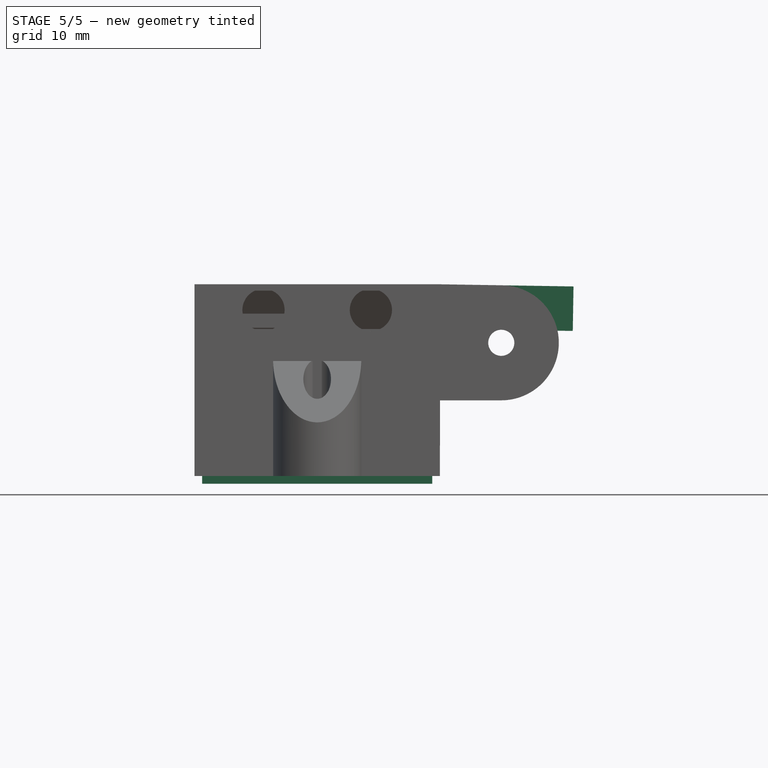
[diagram: stage 5 of 5 — front view after this stage's code; geometry added in this stage tinted green]
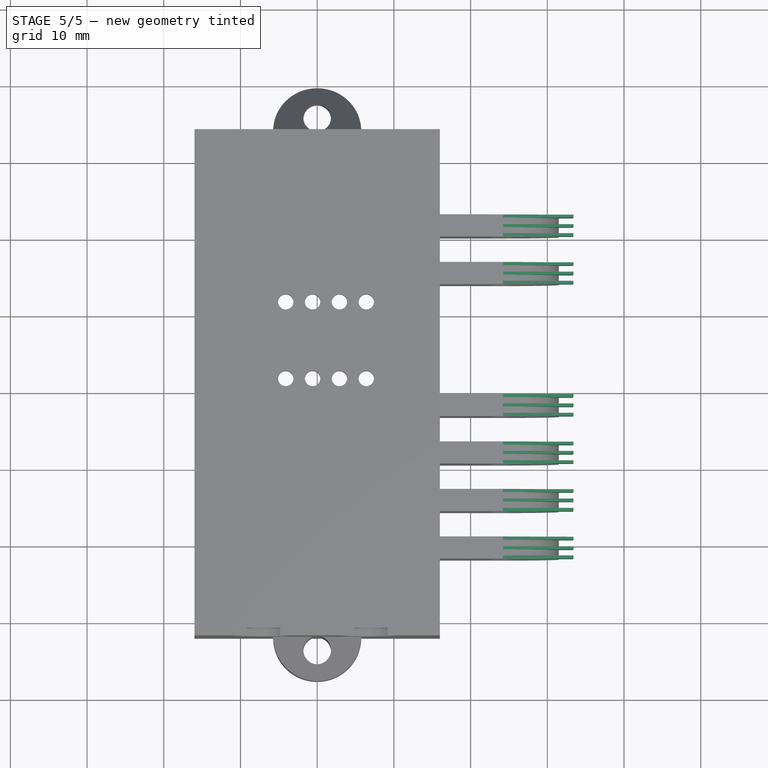
[diagram: stage 5 of 5 — top view after this stage's code; geometry added in this stage tinted green]
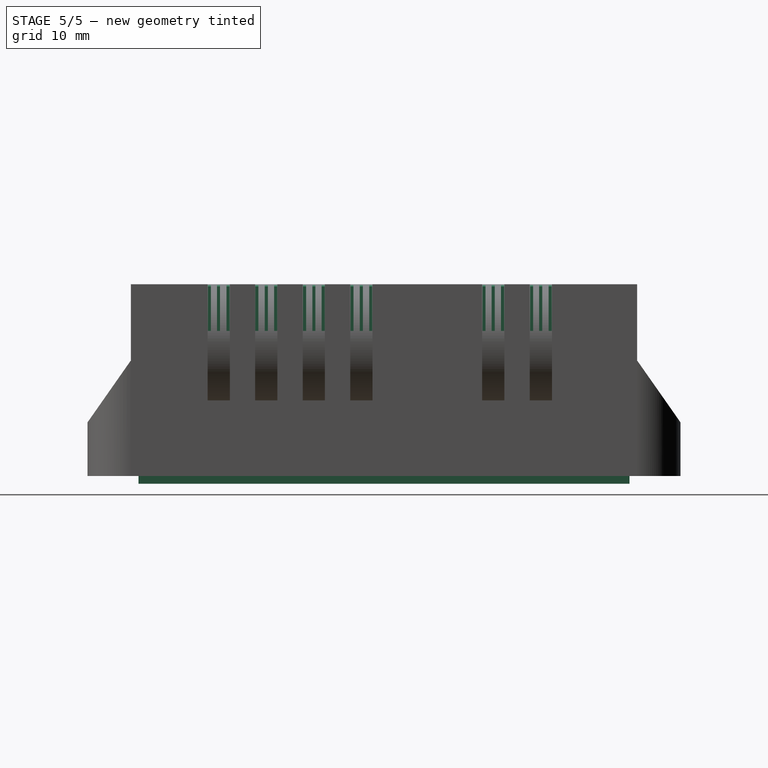
[diagram: stage 5 of 5 — right view after this stage's code; geometry added in this stage tinted green]
FEATURE [Sketcher::SketchObject] Sketch021
  ExternalGeometry = -> [Pad004]
  FullyConstrained = false
  MapMode = 5
  Placement = pos=(0,0,-22.37) rot=(1,0,0;3.14159rad)
  Support = -> [Pad004]
  sketch-geometry (8):
    g0: LineSegment StartX=-14.995 StartY=1 StartZ=0 EndX=14.995 EndY=1 EndZ=0
    g1: LineSegment StartX=14.995 StartY=1 StartZ=0 EndX=14.995 EndY=-63 EndZ=0
    g2: LineSegment StartX=14.995 StartY=-63 StartZ=0 EndX=-14.995 EndY=-63 EndZ=0
    g3: LineSegment StartX=-14.995 StartY=-63 StartZ=0 EndX=-14.995 EndY=1 EndZ=0
    g4: LineSegment StartX=-34.474 StartY=17.9734 StartZ=0 EndX=40.9557 EndY=17.9734 EndZ=0
    g5: LineSegment StartX=40.9557 StartY=17.9734 StartZ=0 EndX=40.9557 EndY=-91.4971 EndZ=0
    g6: LineSegment StartX=40.9557 StartY=-91.4971 StartZ=0 EndX=-34.474 EndY=-91.4971 EndZ=0
    g7: LineSegment StartX=-34.474 StartY=-91.4971 StartZ=0 EndX=-34.474 EndY=17.9734 EndZ=0
  constraints (20):
    c: Coincident(g0,g1)
    c: Coincident(g1,g2)
    c: Coincident(g2,g3)
    c: Coincident(g3,g0)
    c: Horizontal(g0)
    c: Horizontal(g2)
    c: Vertical(g1)
    c: Vertical(g3)
    c: Coincident(g4,g5)
    c: Coincident(g5,g6)
    c: Coincident(g6,g7)
    c: Coincident(g7,g4)
    c: Horizontal(g4)
    c: Horizontal(g6)
    c: Vertical(g5)
    c: Vertical(g7)
    c: DistanceX(g2,g-3) = 1
    c: DistanceY(g2,g-3) = 1
    c: DistanceX(g-3,g1) = 1
    c: DistanceY(g-1,g0) = 1
FEATURE [PartDesign::Pocket] Pocket012
  BaseFeature = -> Pad004
  Direction = (0,0,1)
  Length = 5
  Length2 = 5
  Profile = -> Sketch021
  ReferenceAxis = -> Sketch021 [N_Axis]
  Type = 0
FEATURE [Sketcher::SketchObject] Sketch022
  FullyConstrained = false
  MapMode = 5
  Placement = pos=(-15.995,0,0) rot=(0.57735,-0.57735,-0.57735;2.0944rad)
  Support = -> [Pocket012]
  sketch-geometry (4):
    g0: LineSegment StartX=-79.4178 StartY=-18.37 StartZ=0 EndX=16.8505 EndY=-18.37 EndZ=0
    g1: LineSegment StartX=16.8505 StartY=-18.37 StartZ=0 EndX=16.8505 EndY=-35.6683 EndZ=0
    g2: LineSegment StartX=16.8505 StartY=-35.6683 StartZ=0 EndX=-79.4178 EndY=-35.6683 EndZ=0
    g3: LineSegment StartX=-79.4178 StartY=-35.6683 StartZ=0 EndX=-79.4178 EndY=-18.37 EndZ=0
  constraints (9):
    c: Coincident(g0,g1)
    c: Coincident(g1,g2)
    c: Coincident(g2,g3)
    c: Coincident(g3,g0)
    c: Horizontal(g0)
    c: Horizontal(g2)
    c: Vertical(g1)
    c: Vertical(g3)
    c: DistanceY(g0,g-1) = 18.37
FEATURE [PartDesign::Pocket] Pocket013
  BaseFeature = -> Pocket012
  Direction = (1,0,0)
  Length = 5
  Length2 = 5
  Profile = -> Sketch022
  ReferenceAxis = -> Sketch022 [N_Axis]
  Type = 1
FEATURE [Sketcher::SketchObject] Sketch023
  FullyConstrained = false
  MapMode = 5
  Placement = pos=(0.128164,1.7e-15,7.88789) rot=(0,1,0;0.016247rad)
  Support = -> [Pocket013]
  sketch-geometry (80):
    g0: LineSegment StartX=22.29 StartY=55.2641 StartZ=0 EndX=33.29 EndY=55.2641 EndZ=0
    g1: LineSegment StartX=33.29 StartY=55.2641 StartZ=0 EndX=33.29 EndY=1.36681 EndZ=0
    g2: LineSegment StartX=33.29 StartY=1.36681 StartZ=0 EndX=22.29 EndY=1.36681 EndZ=0
    g3: LineSegment StartX=22.29 StartY=1.36681 StartZ=0 EndX=22.29 EndY=55.2641 EndZ=0
    g4: LineSegment StartX=22.29 StartY=52.4655 StartZ=0 EndX=33.29 EndY=52.4655 EndZ=0
    g5: LineSegment StartX=33.29 StartY=52.4655 StartZ=0 EndX=33.29 EndY=52.8655 EndZ=0
    g6: LineSegment StartX=33.29 StartY=52.8655 StartZ=0 EndX=22.29 EndY=52.8655 EndZ=0
    g7: LineSegment StartX=22.29 StartY=52.8655 StartZ=0 EndX=22.29 EndY=52.4655 EndZ=0
    g8: LineSegment StartX=22.29 StartY=51.6309 StartZ=0 EndX=33.29 EndY=51.6309 EndZ=0
    g9: LineSegment StartX=33.29 StartY=51.6309 StartZ=0 EndX=33.29 EndY=51.2309 EndZ=0
    g10: LineSegment StartX=33.29 StartY=51.2309 StartZ=0 EndX=22.29 EndY=51.2309 EndZ=0
    g11: LineSegment StartX=22.29 StartY=51.2309 StartZ=0 EndX=22.29 EndY=51.6309 EndZ=0
    g12: LineSegment StartX=22.29 StartY=50.4439 StartZ=0 EndX=33.29 EndY=50.4439 EndZ=0
    g13: LineSegment StartX=33.29 StartY=50.4439 StartZ=0 EndX=33.29 EndY=50.0439 EndZ=0
    g14: LineSegment StartX=33.29 StartY=50.0439 StartZ=0 EndX=22.29 EndY=50.0439 EndZ=0
    g15: LineSegment StartX=22.29 StartY=50.0439 StartZ=0 EndX=22.29 EndY=50.4439 EndZ=0
    g16: LineSegment StartX=25.787 StartY=52.8655 StartZ=0 EndX=25.6892 EndY=52.8655 EndZ=0
    g17: LineSegment StartX=25.6892 StartY=52.8655 StartZ=0 EndX=25.6892 EndY=52.8655 EndZ=0
    g18: LineSegment StartX=25.6892 StartY=52.8655 StartZ=0 EndX=25.787 EndY=52.8655 EndZ=0
    g19: LineSegment StartX=25.787 StartY=52.8655 StartZ=0 EndX=25.787 EndY=52.8655 EndZ=0
    g20: LineSegment StartX=22.29 StartY=46.6588 StartZ=0 EndX=33.29 EndY=46.6588 EndZ=0
    g21: LineSegment StartX=33.29 StartY=46.6588 StartZ=0 EndX=33.29 EndY=46.2588 EndZ=0
    g22: LineSegment StartX=33.29 StartY=46.2588 StartZ=0 EndX=22.29 EndY=46.2588 EndZ=0
    g23: LineSegment StartX=22.29 StartY=46.2588 StartZ=0 EndX=22.29 EndY=46.6588 EndZ=0
    g24: LineSegment StartX=22.29 StartY=45.4324 StartZ=0 EndX=33.29 EndY=45.4324 EndZ=0
    g25: LineSegment StartX=33.29 StartY=45.4324 StartZ=0 EndX=33.29 EndY=45.0324 EndZ=0
    g26: LineSegment StartX=33.29 StartY=45.0324 StartZ=0 EndX=22.29 EndY=45.0324 EndZ=0
    g27: LineSegment StartX=22.29 StartY=45.0324 StartZ=0 EndX=22.29 EndY=45.4324 EndZ=0
    g28: LineSegment StartX=22.29 StartY=44.2346 StartZ=0 EndX=33.29 EndY=44.2346 EndZ=0
    g29: LineSegment StartX=33.29 StartY=44.2346 StartZ=0 EndX=33.29 EndY=43.8346 EndZ=0
    g30: LineSegment StartX=33.29 StartY=43.8346 StartZ=0 EndX=22.29 EndY=43.8346 EndZ=0
    g31: LineSegment StartX=22.29 StartY=43.8346 StartZ=0 EndX=22.29 EndY=44.2346 EndZ=0
    g32: LineSegment StartX=22.29 StartY=29.4717 StartZ=0 EndX=33.29 EndY=29.4717 EndZ=0
    g33: LineSegment StartX=33.29 StartY=29.4717 StartZ=0 EndX=33.29 EndY=29.0717 EndZ=0
    g34: LineSegment StartX=33.29 StartY=29.0717 StartZ=0 EndX=22.29 EndY=29.0717 EndZ=0
    g35: LineSegment StartX=22.29 StartY=29.0717 StartZ=0 EndX=22.29 EndY=29.4717 EndZ=0
    g36: LineSegment StartX=22.29 StartY=28.2459 StartZ=0 EndX=33.29 EndY=28.2459 EndZ=0
    g37: LineSegment StartX=33.29 StartY=28.2459 StartZ=0 EndX=33.29 EndY=27.8459 EndZ=0
    g38: LineSegment StartX=33.29 StartY=27.8459 StartZ=0 EndX=22.29 EndY=27.8459 EndZ=0
    g39: LineSegment StartX=22.29 StartY=27.8459 StartZ=0 EndX=22.29 EndY=28.2459 EndZ=0
    g40: LineSegment StartX=22.29 StartY=27.0257 StartZ=0 EndX=33.29 EndY=27.0257 EndZ=0
    g41: LineSegment StartX=33.29 StartY=27.0257 StartZ=0 EndX=33.29 EndY=26.6257 EndZ=0
    g42: LineSegment StartX=33.29 StartY=26.6257 StartZ=0 EndX=22.29 EndY=26.6257 EndZ=0
    g43: LineSegment StartX=22.29 StartY=26.6257 StartZ=0 EndX=22.29 EndY=27.0257 EndZ=0
    g44: LineSegment StartX=22.29 StartY=23.2706 StartZ=0 EndX=33.29 EndY=23.2706 EndZ=0
    g45: LineSegment StartX=33.29 StartY=23.2706 StartZ=0 EndX=33.29 EndY=22.8706 EndZ=0
    g46: LineSegment StartX=33.29 StartY=22.8706 StartZ=0 EndX=22.29 EndY=22.8706 EndZ=0
    g47: LineSegment StartX=22.29 StartY=22.8706 StartZ=0 EndX=22.29 EndY=23.2706 EndZ=0
    g48: LineSegment StartX=22.29 StartY=22.0605 StartZ=0 EndX=33.29 EndY=22.0605 EndZ=0
    g49: LineSegment StartX=33.29 StartY=22.0605 StartZ=0 EndX=33.29 EndY=21.6605 EndZ=0
    g50: LineSegment StartX=33.29 StartY=21.6605 StartZ=0 EndX=22.29 EndY=21.6605 EndZ=0
    g51: LineSegment StartX=22.29 StartY=21.6605 StartZ=0 EndX=22.29 EndY=22.0605 EndZ=0
    g52: LineSegment StartX=22.29 StartY=20.8426 StartZ=0 EndX=33.29 EndY=20.8426 EndZ=0
    g53: LineSegment StartX=33.29 StartY=20.8426 StartZ=0 EndX=33.29 EndY=20.4426 EndZ=0
    g54: LineSegment StartX=33.29 StartY=20.4426 StartZ=0 EndX=22.29 EndY=20.4426 EndZ=0
    g55: LineSegment StartX=22.29 StartY=20.4426 StartZ=0 EndX=22.29 EndY=20.8426 EndZ=0
    g56: LineSegment StartX=22.29 StartY=17.0776 StartZ=0 EndX=33.29 EndY=17.0776 EndZ=0
    g57: LineSegment StartX=33.29 StartY=17.0776 StartZ=0 EndX=33.29 EndY=16.6776 EndZ=0
    g58: LineSegment StartX=33.29 StartY=16.6776 StartZ=0 EndX=22.29 EndY=16.6776 EndZ=0
    g59: LineSegment StartX=22.29 StartY=16.6776 StartZ=0 EndX=22.29 EndY=17.0776 EndZ=0
    g60: LineSegment StartX=22.29 StartY=15.8539 StartZ=0 EndX=33.29 EndY=15.8539 EndZ=0
    g61: LineSegment StartX=33.29 StartY=15.8539 StartZ=0 EndX=33.29 EndY=15.4539 EndZ=0
    g62: LineSegment StartX=33.29 StartY=15.4539 StartZ=0 EndX=22.29 EndY=15.4539 EndZ=0
    g63: LineSegment StartX=22.29 StartY=15.4539 StartZ=0 EndX=22.29 EndY=15.8539 EndZ=0
    g64: LineSegment StartX=22.29 StartY=14.623 StartZ=0 EndX=33.29 EndY=14.623 EndZ=0
    g65: LineSegment StartX=33.29 StartY=14.623 StartZ=0 EndX=33.29 EndY=14.223 EndZ=0
    g66: LineSegment StartX=33.29 StartY=14.223 StartZ=0 EndX=22.29 EndY=14.223 EndZ=0
    g67: LineSegment StartX=22.29 StartY=14.223 StartZ=0 EndX=22.29 EndY=14.623 EndZ=0
    g68: LineSegment StartX=22.29 StartY=10.8692 StartZ=0 EndX=33.29 EndY=10.8692 EndZ=0
    g69: LineSegment StartX=33.29 StartY=10.8692 StartZ=0 EndX=33.29 EndY=10.4692 EndZ=0
    g70: LineSegment StartX=33.29 StartY=10.4692 StartZ=0 EndX=22.29 EndY=10.4692 EndZ=0
    g71: LineSegment StartX=22.29 StartY=10.4692 StartZ=0 EndX=22.29 EndY=10.8692 EndZ=0
    g72: LineSegment StartX=22.29 StartY=9.62546 StartZ=0 EndX=33.29 EndY=9.62546 EndZ=0
    g73: LineSegment StartX=33.29 StartY=9.62546 StartZ=0 EndX=33.29 EndY=9.22546 EndZ=0
    g74: LineSegment StartX=33.29 StartY=9.22546 StartZ=0 EndX=22.29 EndY=9.22546 EndZ=0
    g75: LineSegment StartX=22.29 StartY=9.22546 StartZ=0 EndX=22.29 EndY=9.62546 EndZ=0
    g76: LineSegment StartX=22.29 StartY=8.43122 StartZ=0 EndX=33.29 EndY=8.43122 EndZ=0
    g77: LineSegment StartX=33.29 StartY=8.43122 StartZ=0 EndX=33.29 EndY=8.03122 EndZ=0
    g78: LineSegment StartX=33.29 StartY=8.03122 StartZ=0 EndX=22.29 EndY=8.03122 EndZ=0
    g79: LineSegment StartX=22.29 StartY=8.03122 StartZ=0 EndX=22.29 EndY=8.43122 EndZ=0
  constraints (218):
    c: Coincident(g0,g1)
    c: Coincident(g1,g2)
    c: Coincident(g2,g3)
    c: Coincident(g3,g0)
    c: Horizontal(g0)
    c: Horizontal(g2)
    c: Vertical(g1)
    c: Vertical(g3)
    c: Coincident(g4,g5)
    c: Coincident(g5,g6)
    c: Coincident(g6,g7)
    c: Coincident(g7,g4)
    c: Horizontal(g4)
    c: Horizontal(g6)
    c: Vertical(g5)
    c: Vertical(g7)
    c: PointOnObject(g4,g3)
    c: PointOnObject(g5,g1)
    c: Coincident(g8,g9)
    c: Coincident(g9,g10)
    c: Coincident(g10,g11)
    c: Coincident(g11,g8)
    c: Horizontal(g8)
    c: Horizontal(g10)
    c: Vertical(g9)
    c: Vertical(g11)
    c: PointOnObject(g8,g3)
    c: PointOnObject(g9,g1)
    c: Coincident(g12,g13)
    c: Coincident(g13,g14)
    c: Coincident(g14,g15)
    c: Coincident(g15,g12)
    c: Horizontal(g12)
    c: Horizontal(g14)
    c: Vertical(g13)
    c: Vertical(g15)
    c: PointOnObject(g12,g3)
    c: PointOnObject(g13,g1)
    c: Coincident(g16,g17)
    c: Coincident(g17,g18)
    c: Coincident(g18,g19)
    c: Coincident(g19,g16)
    c: Horizontal(g16)
    c: Horizontal(g18)
    c: Vertical(g17)
    c: Vertical(g19)
    c: PointOnObject(g16,g6)
    c: PointOnObject(g17,g6)
    c: DistanceX(g0,g0) = 11
    c: DistanceX(g-1,g2) = 22.29
    c: Coincident(g20,g21)
    c: Coincident(g21,g22)
    c: Coincident(g22,g23)
    c: Coincident(g23,g20)
    c: Horizontal(g20)
    c: Horizontal(g22)
    c: Vertical(g21)
    c: Vertical(g23)
    c: PointOnObject(g20,g3)
    c: PointOnObject(g21,g1)
    c: Coincident(g24,g25)
    c: Coincident(g25,g26)
    c: Coincident(g26,g27)
    c: Coincident(g27,g24)
    c: Horizontal(g24)
    c: Horizontal(g26)
    c: Vertical(g25)
    c: Vertical(g27)
    c: PointOnObject(g24,g3)
    c: PointOnObject(g25,g1)
    c: Coincident(g28,g29)
    c: Coincident(g29,g30)
    c: Coincident(g30,g31)
    c: Coincident(g31,g28)
    c: Horizontal(g28)
    c: Horizontal(g30)
    c: Vertical(g29)
    c: Vertical(g31)
    c: PointOnObject(g28,g3)
    c: PointOnObject(g29,g1)
    c: Coincident(g32,g33)
    c: Coincident(g33,g34)
    c: Coincident(g34,g35)
    c: Coincident(g35,g32)
    c: Horizontal(g32)
    c: Horizontal(g34)
    c: Vertical(g33)
    c: Vertical(g35)
    c: PointOnObject(g32,g3)
    c: PointOnObject(g33,g1)
    c: Coincident(g36,g37)
    c: Coincident(g37,g38)
    c: Coincident(g38,g39)
    c: Coincident(g39,g36)
    c: Horizontal(g36)
    c: Horizontal(g38)
    c: Vertical(g37)
    c: Vertical(g39)
    c: PointOnObject(g36,g3)
    c: PointOnObject(g37,g1)
    c: Coincident(g40,g41)
    c: Coincident(g41,g42)
    c: Coincident(g42,g43)
    c: Coincident(g43,g40)
    c: Horizontal(g40)
    c: Horizontal(g42)
    c: Vertical(g41)
    c: Vertical(g43)
    c: PointOnObject(g40,g3)
    c: PointOnObject(g41,g1)
    c: Coincident(g44,g45)
    c: Coincident(g45,g46)
    c: Coincident(g46,g47)
    c: Coincident(g47,g44)
    c: Horizontal(g44)
    c: Horizontal(g46)
    c: Vertical(g45)
    c: Vertical(g47)
    c: PointOnObject(g44,g3)
    c: PointOnObject(g45,g1)
    c: Coincident(g48,g49)
    c: Coincident(g49,g50)
    c: Coincident(g50,g51)
    c: Coincident(g51,g48)
    c: Horizontal(g48)
    c: Horizontal(g50)
    c: Vertical(g49)
    c: Vertical(g51)
    c: PointOnObject(g48,g3)
    c: PointOnObject(g49,g1)
    c: Coincident(g52,g53)
    c: Coincident(g53,g54)
    c: Coincident(g54,g55)
    c: Coincident(g55,g52)
    c: Horizontal(g52)
    c: Horizontal(g54)
    c: Vertical(g53)
    c: Vertical(g55)
    c: PointOnObject(g52,g3)
    c: PointOnObject(g53,g1)
    c: Coincident(g56,g57)
    c: Coincident(g57,g58)
    c: Coincident(g58,g59)
    c: Coincident(g59,g56)
    c: Horizontal(g56)
    c: Horizontal(g58)
    c: Vertical(g57)
    c: Vertical(g59)
    c: PointOnObject(g56,g3)
    c: PointOnObject(g57,g1)
    c: Coincident(g60,g61)
    c: Coincident(g61,g62)
    c: Coincident(g62,g63)
    c: Coincident(g63,g60)
    c: Horizontal(g60)
    c: Horizontal(g62)
    c: Vertical(g61)
    c: Vertical(g63)
    c: PointOnObject(g60,g3)
    c: PointOnObject(g61,g1)
    c: Coincident(g64,g65)
    c: Coincident(g65,g66)
    c: Coincident(g66,g67)
    c: Coincident(g67,g64)
    c: Horizontal(g64)
    c: Horizontal(g66)
    c: Vertical(g65)
    c: Vertical(g67)
    c: PointOnObject(g64,g3)
    c: PointOnObject(g65,g1)
    c: Coincident(g68,g69)
    c: Coincident(g69,g70)
    c: Coincident(g70,g71)
    c: Coincident(g71,g68)
    c: Horizontal(g68)
    c: Horizontal(g70)
    c: Vertical(g69)
    c: Vertical(g71)
    c: PointOnObject(g68,g3)
    c: PointOnObject(g69,g1)
    c: Coincident(g72,g73)
    c: Coincident(g73,g74)
    c: Coincident(g74,g75)
    c: Coincident(g75,g72)
    c: Horizontal(g72)
    c: Horizontal(g74)
    c: Vertical(g73)
    c: Vertical(g75)
    c: PointOnObject(g72,g3)
    c: PointOnObject(g73,g1)
    c: Coincident(g76,g77)
    c: Coincident(g77,g78)
    c: Coincident(g78,g79)
    c: Coincident(g79,g76)
    c: Horizontal(g76)
    c: Horizontal(g78)
    c: Vertical(g77)
    c: Vertical(g79)
    c: PointOnObject(g76,g3)
    c: PointOnObject(g77,g1)
    c: Equal(g7,g11)
    c: Equal(g11,g15)
    c: Equal(g15,g23)
    c: Equal(g23,g27)
    c: Equal(g27,g31)
    c: Equal(g31,g35)
    c: Equal(g35,g39)
    c: Equal(g39,g43)
    c: Equal(g43,g47)
    c: Equal(g47,g51)
    c: Equal(g51,g55)
    c: Equal(g55,g59)
    c: Equal(g59,g63)
    c: Equal(g63,g67)
    c: Equal(g67,g71)
    c: Equal(g71,g75)
    c: Equal(g75,g79)
    c: DistanceY(g7,g7) = 0.4
FEATURE [PartDesign::Pad] Pad005
  BaseFeature = -> Pocket013
  Direction = (0.016246,2e-16,0.999868)
  Length = 5.8
  Length2 = 10
  Profile = -> Sketch023
  ReferenceAxis = -> Sketch023 [N_Axis]
  Reversed = true
  Type = 0
FEATURE [Sketcher::SketchObject] Sketch024
  FullyConstrained = false
  MapMode = 5
  Placement = pos=(0,0,0) rot=(1,0,0;3.14159rad)
  Support = -> [Pad005]
  sketch-geometry (8):
    g0: LineSegment StartX=-8.51805 StartY=-22.0815 StartZ=0 EndX=-5.01805 EndY=-22.0815 EndZ=0
    g1: LineSegment StartX=-5.01805 StartY=-22.0815 StartZ=0 EndX=-5.01805 EndY=-28.5409 EndZ=0
    g2: LineSegment StartX=-5.01805 StartY=-28.5409 StartZ=0 EndX=-8.51805 EndY=-28.5409 EndZ=0
    g3: LineSegment StartX=-8.51805 StartY=-28.5409 StartZ=0 EndX=-8.51805 EndY=-22.0815 EndZ=0
    g4: LineSegment StartX=5.45647 StartY=-21.8143 StartZ=0 EndX=8.95647 EndY=-21.8143 EndZ=0
    g5: LineSegment StartX=8.95647 StartY=-21.8143 StartZ=0 EndX=8.95647 EndY=-28.8973 EndZ=0
    g6: LineSegment StartX=8.95647 StartY=-28.8973 StartZ=0 EndX=5.45647 EndY=-28.8973 EndZ=0
    g7: LineSegment StartX=5.45647 StartY=-28.8973 StartZ=0 EndX=5.45647 EndY=-21.8143 EndZ=0
  constraints (18):
    c: Coincident(g0,g1)
    c: Coincident(g1,g2)
    c: Coincident(g2,g3)
    c: Coincident(g3,g0)
    c: Horizontal(g0)
    c: Horizontal(g2)
    c: Vertical(g1)
    c: Vertical(g3)
    c: Coincident(g4,g5)
    c: Coincident(g5,g6)
    c: Coincident(g6,g7)
    c: Coincident(g7,g4)
    c: Horizontal(g4)
    c: Horizontal(g6)
    c: Vertical(g5)
    c: Vertical(g7)
    c: Equal(g2,g6)
    c: DistanceX(g2,g2) = 3.5
FEATURE [PartDesign::Pocket] Pocket014
  BaseFeature = -> Pad005
  Direction = (0,0,1)
  Length = 2
  Length2 = 5
  Profile = -> Sketch024
  ReferenceAxis = -> Sketch024 [N_Axis]
  Type = 0
FEATURE [PartDesign::Body] Body
  Group = -> [Sketch,Pad,Sketch004,Pocket002,Sketch001,Pocket,Sketch005,Pocket003,Chamfer,Sketch006,Pad001,Sketch007,Pocket004,Sketch008,Pocket005,Sketch011,Pocket006,Sketch013,Pocket007,Sketch014,Pocket008,Sketch015,Pocket009,Sketch016,Pad002,Sketch017,Pocket010,Sketch018,Pad003,Sketch019,Pocket011,Sketch020,Pad004,Sketch021,Pocket012,Sketch022,Pocket013,Sketch023,Pad005,Sketch024,Pocket014]
  Origin = -> Origin
  Tip = -> Pocket014
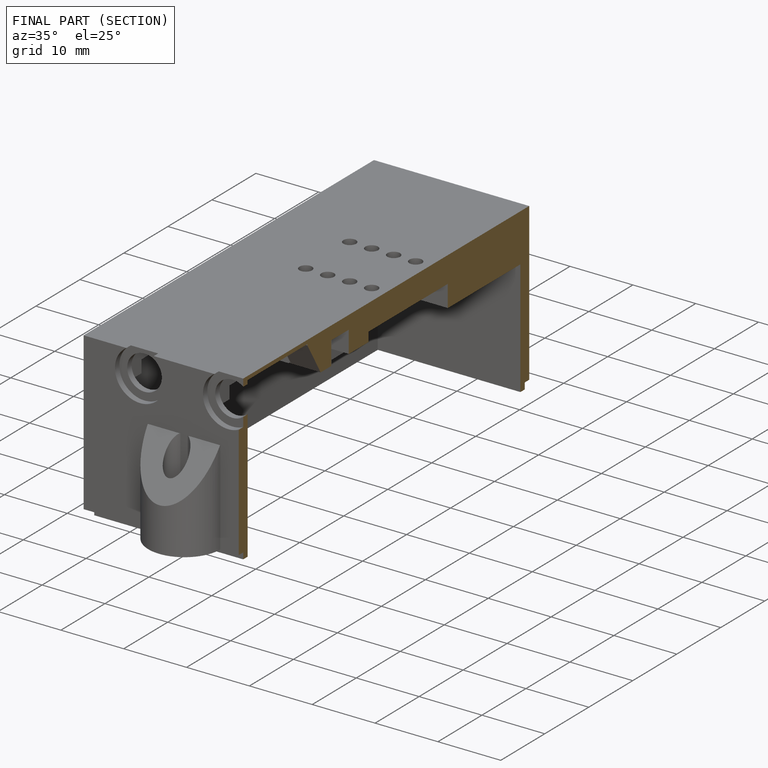
[diagram: finished part — half-section view (interior)]
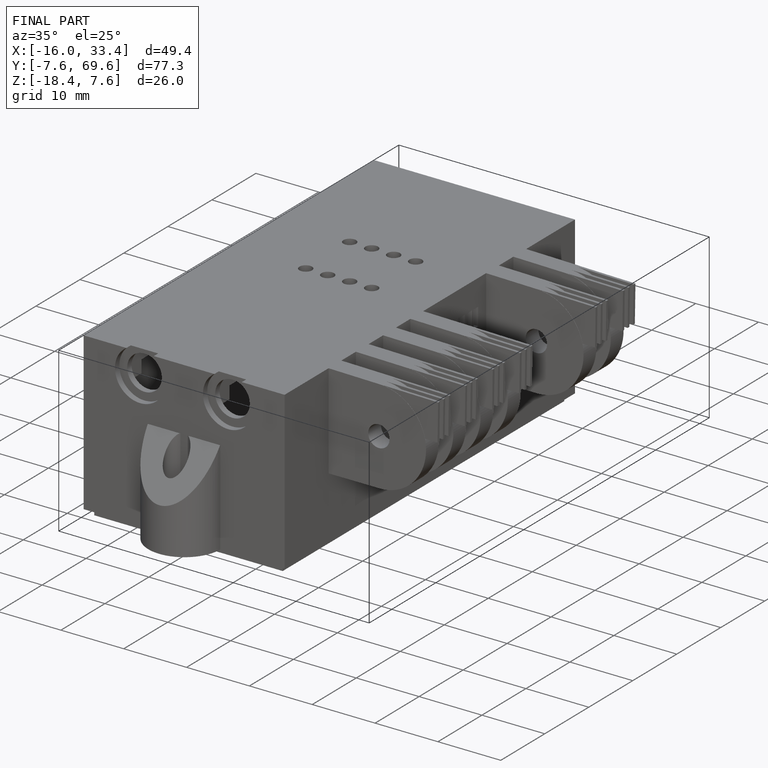
[diagram: finished part — iso view with bounding-box wireframe]
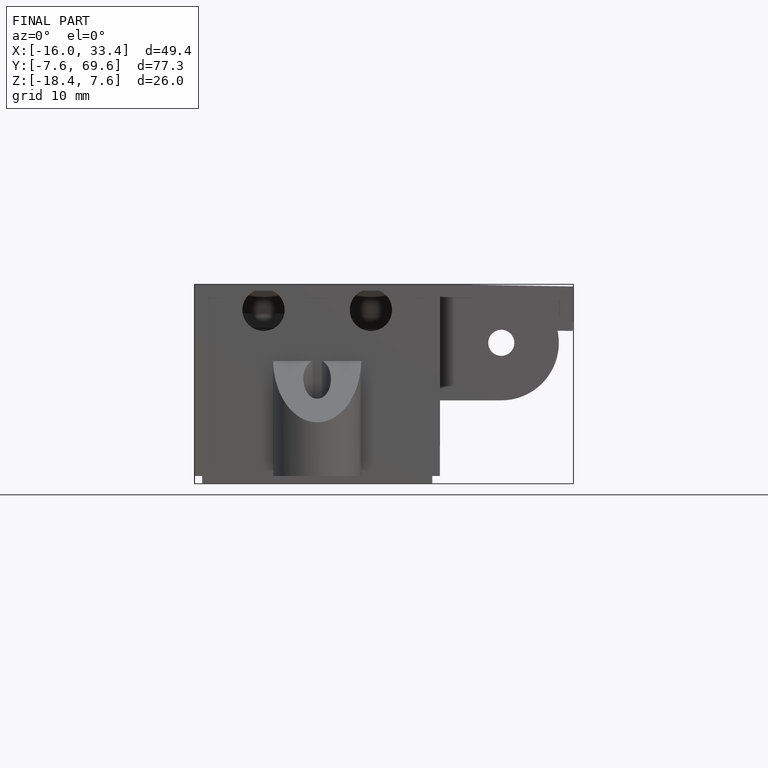
[diagram: finished part — front view with bounding-box wireframe]
